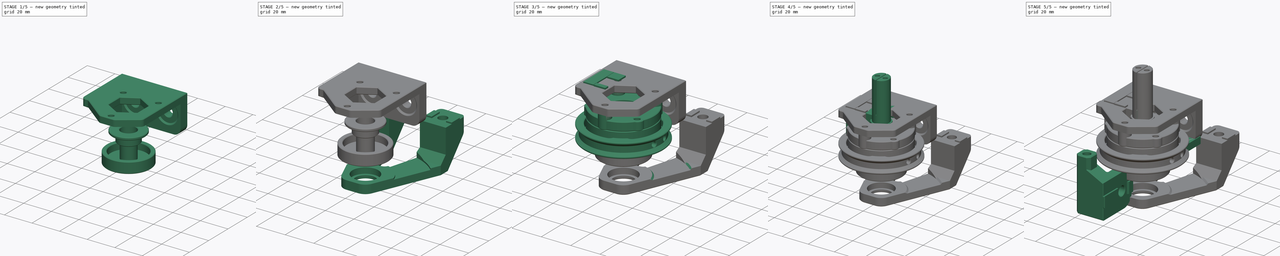
[diagram: build sequence overview — one tinted view per stage of 5, left to right]
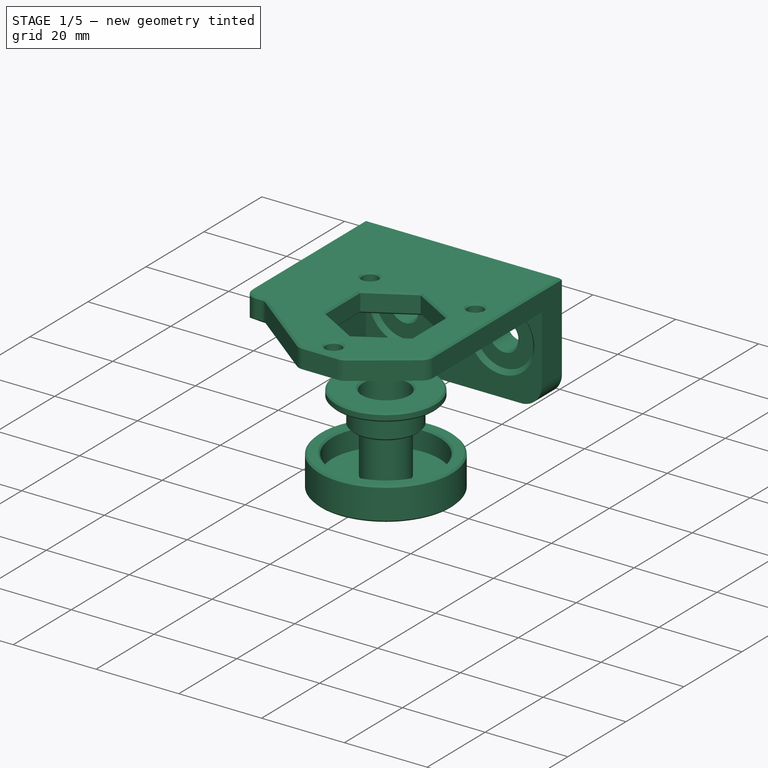
[diagram: stage 1 of 5 — iso view after this stage's code; geometry added in this stage tinted green]
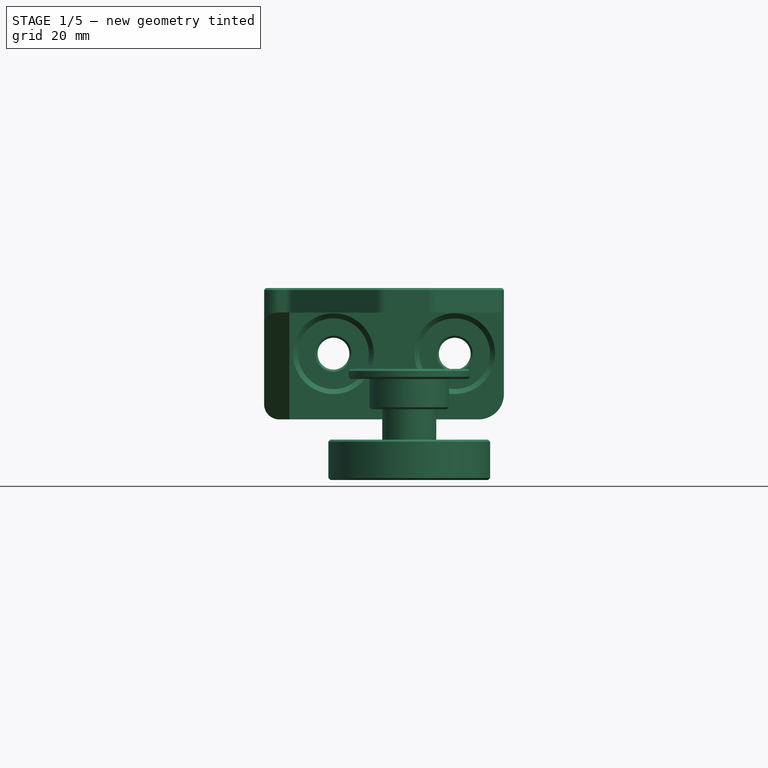
[diagram: stage 1 of 5 — front view after this stage's code; geometry added in this stage tinted green]
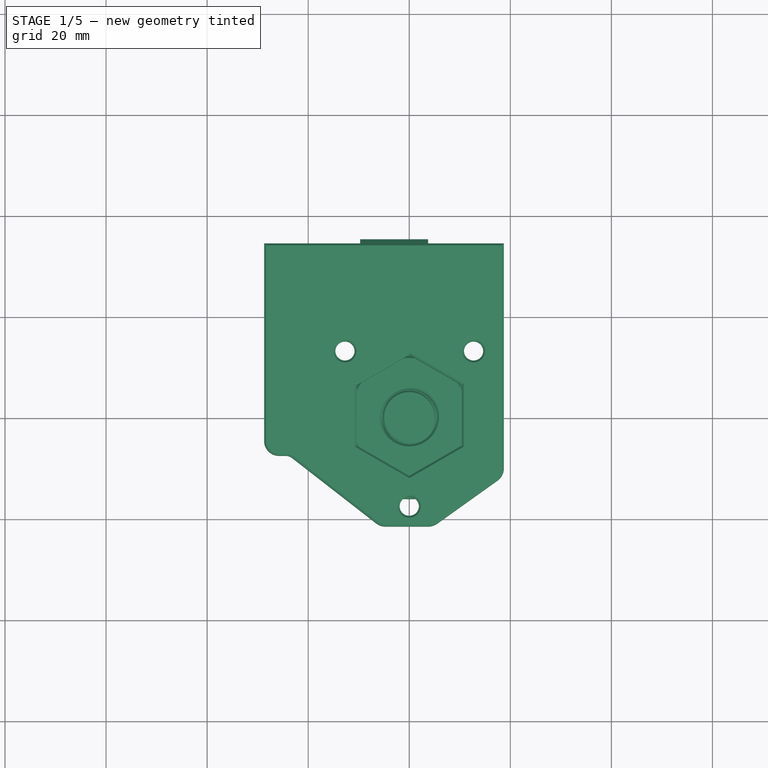
[diagram: stage 1 of 5 — top view after this stage's code; geometry added in this stage tinted green]
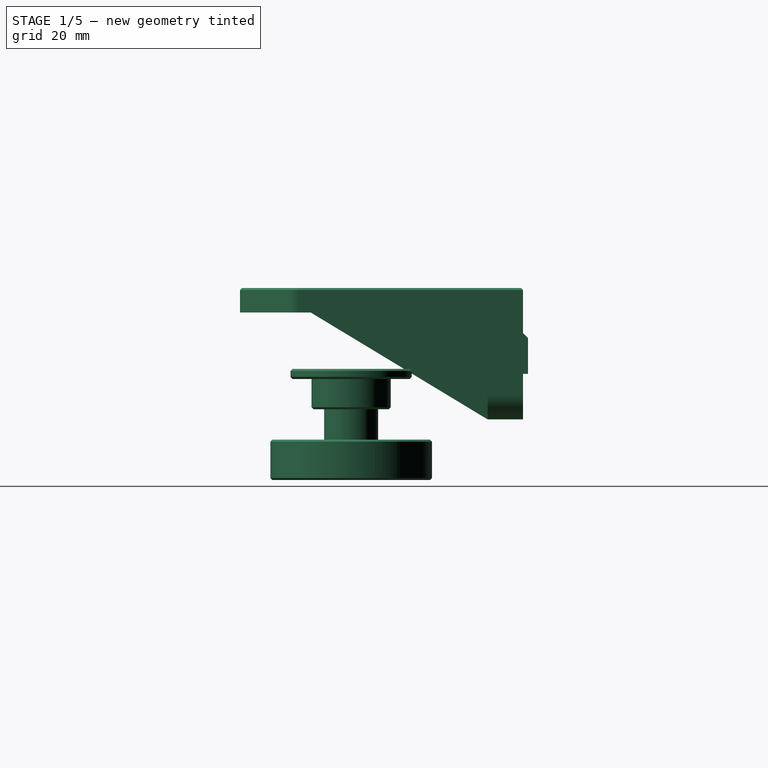
[diagram: stage 1 of 5 — right view after this stage's code; geometry added in this stage tinted green]
FCSTD DOCUMENT  (FreeCAD 0.19R24291 (Git))
Label: counter-weight-spring-short
License: Other
LicenseURL: GPL3
objects: Sketcher::SketchObject×40, Part::Cylinder×34, Part::Chamfer×29, PartDesign::Pocket×26, Part::Cut×22, Part::MultiFuse×21, Part::Box×20, PartDesign::Plane×19, PartDesign::Chamfer×15, Part::Feature×12, PartDesign::Pad×12, PartDesign::Body×10, Part::Fillet×10, PartDesign::Fillet×3, PartDesign::FeatureBase×2, Spreadsheet::Sheet×1, PartDesign::Revolution×1, Part::Extrusion×1
note: 334 computed .brp shape members not serialized (recipe doc carries the construction recipe); baked Part::Feature solids carry a one-line shape summary decoded from their .brp

FEATURE [Part::Box] Box012  label="Cube012"
  AttacherType = Attacher::AttachEngine3D
  Height = 26
  Length = 47.46
  Placement = pos=(-28.73,27,22) rot=(0,0,1;0rad)
  Width = 7
FEATURE [Part::Cylinder] Cylinder008
  Angle = 360
  AttacherType = Attacher::AttachEngine3D
  Height = 10
  Placement = pos=(0,26,35) rot=(-1,0,0;1.5708rad)
  Radius = 3.15
FEATURE [Part::Box] Box014  label="Cube014"
  AttacherType = Attacher::AttachEngine3D
  Height = 8
  Length = 13.46
  Placement = pos=(-9.73,34,31) rot=(0,0,1;0rad)
  Width = 1
FEATURE [Part::Cylinder] Cylinder009
  Angle = 360
  AttacherType = Attacher::AttachEngine3D
  Height = 2
  Placement = pos=(0,27,35) rot=(-1,0,0;1.5708rad)
  Radius = 7
FEATURE [Part::MultiFuse] Fusion001002012
  Placement = pos=(9,0,0) rot=(0,0,1;0rad)
  Shapes = -> [Cylinder009,Cylinder008]
FEATURE [PartDesign::Plane] DatumPlane019
  AttachmentOffset = pos=(0,0,19) rot=(0,0,1;0rad)
  Length = 60
  MapMode = 5
  Placement = pos=(0,0,19) rot=(0,0,1;0rad)
  ResizeMode = 0
  Support = -> [XY_Plane009]
  Width = 60
FEATURE [Part::Box] Box  label="Cube"
  AttacherType = Attacher::AttachEngine3D
  Height = 4.85
  Length = 42.46
  Placement = pos=(-23.73,-22,43.15) rot=(0,0,1;0rad)
  Width = 54
FEATURE [Part::Cylinder] Cylinder027
  Angle = 360
  AttacherType = Attacher::AttachEngine3D
  Height = 8.85
  Placement = pos=(12.7279,12.7279,45.15) rot=(0,0,-1;0.785398rad)
  Radius = 1.9
FEATURE [Part::Cylinder] Cylinder028
  Angle = 360
  AttacherType = Attacher::AttachEngine3D
  Height = 8.85
  Placement = pos=(-12.7279,12.7279,45.15) rot=(0,0,1;0.785398rad)
  Radius = 1.9
FEATURE [Part::Cylinder] Cylinder029
  Angle = 360
  AttacherType = Attacher::AttachEngine3D
  Height = 8.85
  Placement = pos=(0,-18,45.15) rot=(0,0,1;0rad)
  Radius = 1.9
FEATURE [Part::MultiFuse] Fusion001002012026
  Placement = pos=(0,0,-3) rot=(0,0,1;0rad)
  Shapes = -> [Cylinder029,Cylinder028,Cylinder027]
FEATURE [Part::Cylinder] Cylinder038
  Angle = 360
  AttacherType = Attacher::AttachEngine3D
  Height = 8
  Placement = pos=(0,0,-2) rot=(0,0,1;0rad)
  Radius = 7.85
FEATURE [Part::Cylinder] Cylinder039
  Angle = 360
  AttacherType = Attacher::AttachEngine3D
  Height = 2
  Placement = pos=(0,0,4) rot=(0,0,1;0rad)
  Radius = 12
FEATURE [Part::Cylinder] Cylinder040
  Angle = 360
  AttacherType = Attacher::AttachEngine3D
  Height = 8
  Placement = pos=(0,0,-2) rot=(0,0,1;0rad)
  Radius = 5.5
FEATURE [Part::MultiFuse] Fusion001002012036
  Shapes = -> [Cylinder038,Cylinder039]
FEATURE [Part::Cut] Cut001042
  Base = -> Fusion001002012036
  Refine = true
  Tool = -> Cylinder040
FEATURE [Part::Chamfer] Chamfer003068012002091  label="bearing-remover-bottom"
  Base = -> Cut001042
  Edges = 5 edges r=0.4: [Edge1,Edge3,Edge6,Edge7,Edge9]
  Placement = pos=(0,0,6) rot=(0,0,1;0rad)
FEATURE [Part::Cylinder] Cylinder041
  Angle = 360
  AttacherType = Attacher::AttachEngine3D
  Height = 12
  Placement = pos=(0,0,-7) rot=(0,0,1;0rad)
  Radius = 5.35
FEATURE [Part::Cylinder] Cylinder042
  Angle = 360
  AttacherType = Attacher::AttachEngine3D
  Height = 8
  Placement = pos=(0,0,-10) rot=(0,0,1;0rad)
  Radius = 16
FEATURE [Part::Cylinder] Cylinder043
  Angle = 360
  AttacherType = Attacher::AttachEngine3D
  Height = 5
  Placement = pos=(0,0,-7) rot=(0,0,1;0rad)
  Radius = 13
FEATURE [Part::Cut] Cut001043
  Base = -> Cylinder042
  Tool = -> Cylinder043
FEATURE [Part::MultiFuse] Fusion001002012037
  Shapes = -> [Cut001043,Cylinder041]
FEATURE [Part::Chamfer] Chamfer003068012002092  label="bearing-remover-top"
  Base = -> Fusion001002012037
  Edges = 4 edges r=0.4: [Edge1,Edge3,Edge4,Edge8]
FEATURE [Part::Box] Box048  label="Cube048"
  AttacherType = Attacher::AttachEngine3D
  Height = 26
  Length = 5
  Placement = pos=(-28.73,-8,22) rot=(0,0,1;0rad)
  Width = 36
FEATURE [Part::Fillet] Fillet003002014
  Base = -> Box012
  Edges = 1 edges r=5: [Edge8]
FEATURE [Part::Chamfer] Chamfer003068012002096
  Base = -> Box
  Edges = 1 edges: [Edge5 r1=10 r2=14]
FEATURE [Part::MultiFuse] Fusion
  Placement = pos=(0,-1,0) rot=(0,0,1;0rad)
  Shapes = -> [Fusion001002012,Fusion001002012001]
FEATURE [Part::Chamfer] Chamfer003068012002098
  Base = -> Box014
  Edges = 1 edges r=0.9: [Edge12]
FEATURE [Part::Cut] Cut
  Base = -> Fillet003002014
  Tool = -> Fusion
FEATURE [Part::Chamfer] Chamfer003068012002099
  Base = -> Chamfer003068012002096
  Edges = 1 edges: [Edge15 r1=18 r2=14]
FEATURE [Part::Chamfer] Chamfer003068012002100
  Base = -> Box048
  Edges = 1 edges: [Edge9 r1=21.15 r2=35]
FEATURE [Part::Cut] Cut001044
  Base = -> Chamfer003068012002099
  Tool = -> Pad011
FEATURE [Part::Cut] Cut001045
  Base = -> Cut001044
  Tool = -> Fusion001002012026
FEATURE [Part::MultiFuse] Fusion001002012038
  Refine = true
  Shapes = -> [Cut001045,Chamfer003068012002100,Cut,Chamfer003068012002098]
FEATURE [Part::Fillet] Fillet003002015
  Base = -> Fusion001002012038
  Edges = 3 edges r=3: [Edge49,Edge51,Edge52]
FEATURE [Part::Fillet] Fillet003002016
  Base = -> Fillet003002015
  Edges = 1 edges r=3: [Edge81]
FEATURE [Part::Fillet] Fillet003002017
  Base = -> Fillet003002016
  Edges = 1 edges r=2: [Edge37]
FEATURE [Part::Fillet] Fillet003002018
  Base = -> Fillet003002017
  Edges = 1 edges r=3: [Edge34]
FEATURE [Part::Chamfer] Chamfer003068012002101
  Base = -> Fillet003002018
  Edges = 34 edges r=0.4: [Edge5,Edge8,Edge11,Edge16,Edge19,Edge20,Edge21,Edge22,Edge23,Edge24,Edge25,Edge26,Edge27,Edge28,Edge29,Edge30,Edge31,Edge32,Edge33,Edge34,Edge35,Edge36,Edge37,Edge52,Edge64,Edge81,Edge84,Edge86,Edge88,Edge90,Edge92,Edge94,Edge96,Edge98]
FEATURE [Part::Chamfer] Chamfer003068012002102  label="mounter-back"
  Base = -> Chamfer003068012002101
  Edges = 2 edges r=0.99: [Edge102,Edge103]
  Placement = pos=(0,0,-20) rot=(0,0,1;0rad)
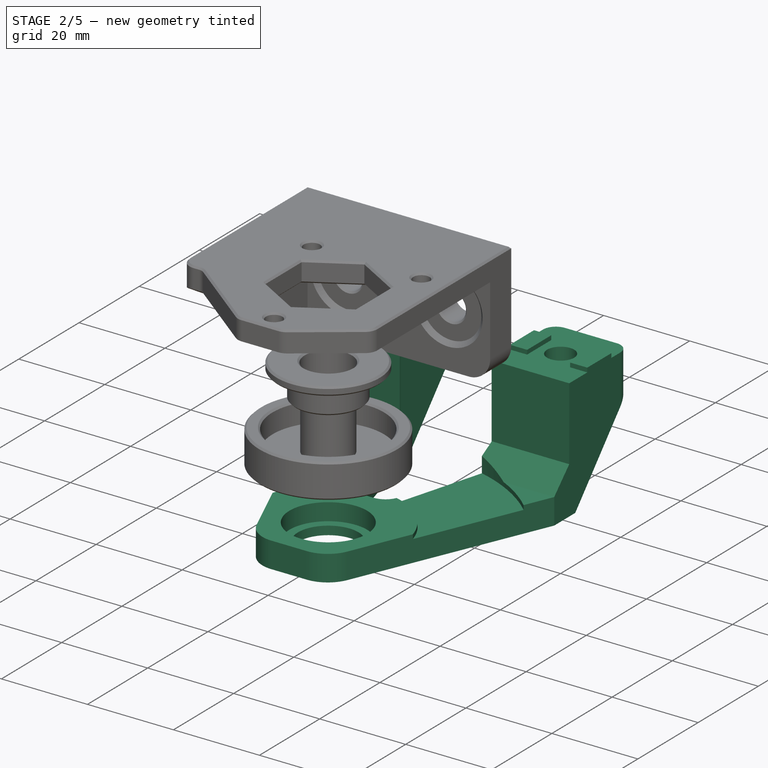
[diagram: stage 2 of 5 — iso view after this stage's code; geometry added in this stage tinted green]
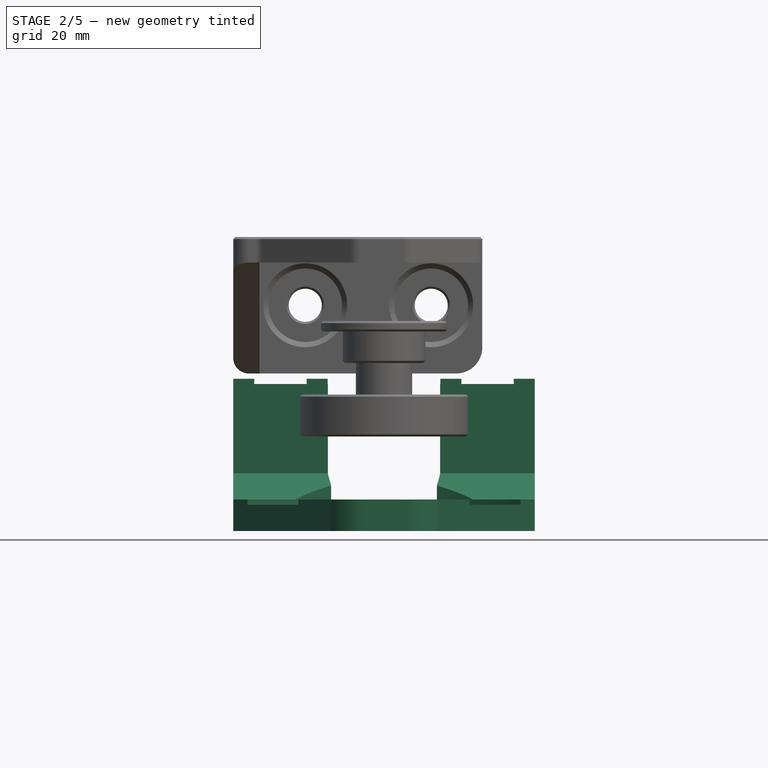
[diagram: stage 2 of 5 — front view after this stage's code; geometry added in this stage tinted green]
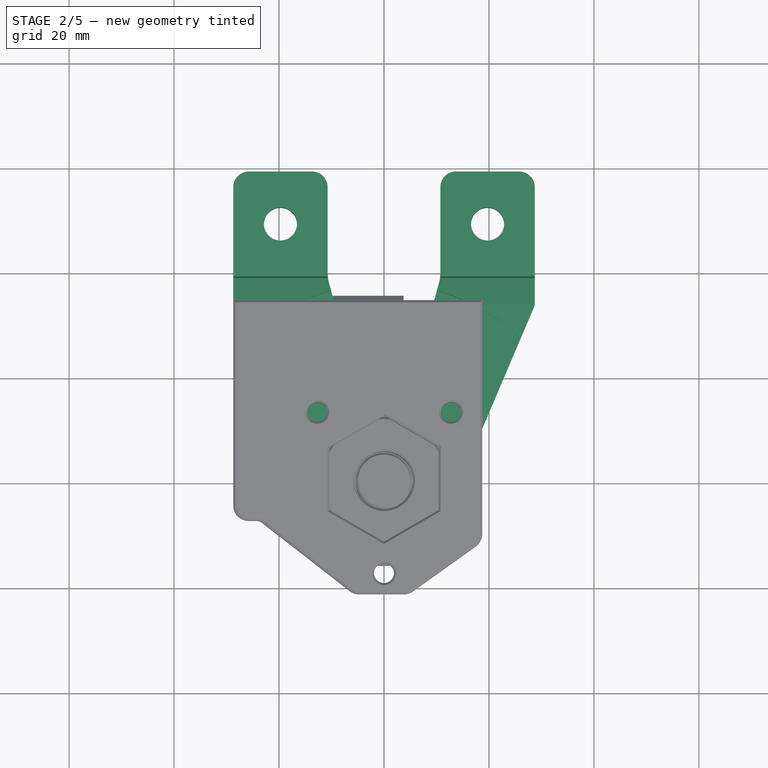
[diagram: stage 2 of 5 — top view after this stage's code; geometry added in this stage tinted green]
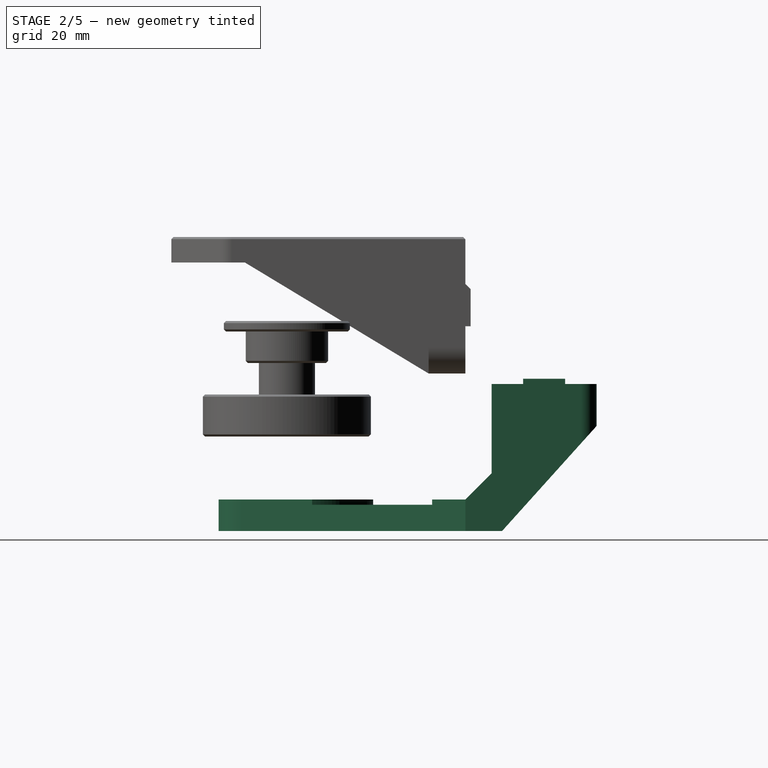
[diagram: stage 2 of 5 — right view after this stage's code; geometry added in this stage tinted green]
FEATURE [PartDesign::Body] Body001001001002003011001004  label="pulley-spacer"
  Group = -> [Sketch053,Pad013,Chamfer003068012002072]
  Origin = -> Origin010
  Placement = pos=(0,0,-2) rot=(0,0,1;0rad)
  Tip = -> Chamfer003068012002072
FEATURE [Part::Feature] Chamfer003068012002073  label="bearing-6701ZZ003"
  Placement = pos=(0,0,-26) rot=(0,0,1;0rad)
  shape: bbox 18 x 18 x 4 mm, 20 faces (baked)
FEATURE [Part::Feature] Common001  label="3030-pref"
  Placement = pos=(-52,49,15) rot=(0,1,0;1.5708rad)
  shape: bbox 100 x 30 x 30 mm, 109 faces (baked)
FEATURE [Part::Box] Box041  label="Cube041"
  AttacherType = Attacher::AttachEngine3D
  Height = 6
  Length = 57.46
  Placement = pos=(-28.73,-13,-28) rot=(0,0,1;0rad)
  Width = 72
FEATURE [Part::Cylinder] Cylinder
  Angle = 360
  AttacherType = Attacher::AttachEngine3D
  Height = 10
  Placement = pos=(0,0,-27) rot=(0,0,1;0rad)
  Radius = 9.05
FEATURE [Part::Cylinder] Cylinder030
  Angle = 360
  AttacherType = Attacher::AttachEngine3D
  Height = 10
  Placement = pos=(0,0,-29) rot=(0,0,1;0rad)
  Radius = 7.05
FEATURE [Part::MultiFuse] Fusion001002012028
  Placement = pos=(0,0,1) rot=(0,0,1;0rad)
  Shapes = -> [Cylinder030,Cylinder]
FEATURE [Part::Box] Box042  label="Cube042"
  AttacherType = Attacher::AttachEngine3D
  Height = 22
  Length = 57.46
  Placement = pos=(-28.73,39,-22) rot=(0,0,1;0rad)
  Width = 20
FEATURE [Part::Box] Box043  label="Cube043"
  AttacherType = Attacher::AttachEngine3D
  Height = 1
  Length = 4
  Placement = pos=(-28.73,45,0) rot=(0,0,1;0rad)
  Width = 8
FEATURE [Part::Box] Box044  label="Cube044"
  AttacherType = Attacher::AttachEngine3D
  Height = 45
  Length = 21.46
  Placement = pos=(-10.73,14,-35) rot=(0,0,1;0rad)
  Width = 55
FEATURE [Part::Chamfer] Chamfer003068012002082
  Base = -> Box044
  Edges = 1 edges: [Edge5 r1=25 r2=7]
FEATURE [Part::Chamfer] Chamfer003068012002083
  Base = -> Chamfer003068012002082
  Edges = 1 edges: [Edge15 r1=7 r2=25]
FEATURE [Part::Fillet] Fillet003002010
  Base = -> Chamfer003068012002083
  Edges = 2 edges r=4: [Edge11,Edge15]
FEATURE [Part::Fillet] Fillet003002011
  Base = -> Fillet003002010
  Edges = 2 edges r=5: [Edge11,Edge22]
FEATURE [Part::Cylinder] Cylinder031
  Angle = 360
  AttacherType = Attacher::AttachEngine3D
  Height = 28
  Placement = pos=(19.73,49,-41) rot=(0,0,1;1.5708rad)
  Radius = 6.15
FEATURE [Part::Cylinder] Cylinder032
  Angle = 360
  AttacherType = Attacher::AttachEngine3D
  Height = 28
  Placement = pos=(-19.73,49,-41) rot=(0,0,1;1.5708rad)
  Radius = 6.15
FEATURE [Part::Cylinder] Cylinder033
  Angle = 360
  AttacherType = Attacher::AttachEngine3D
  Height = 65
  Placement = pos=(-19.73,49,-41) rot=(0,0,1;1.5708rad)
  Radius = 3.15
FEATURE [Part::Cylinder] Cylinder034
  Angle = 360
  AttacherType = Attacher::AttachEngine3D
  Height = 65
  Placement = pos=(19.73,49,-41) rot=(0,0,1;1.5708rad)
  Radius = 3.15
FEATURE [Part::MultiFuse] Fusion001002012030
  Shapes = -> [Cylinder034,Cylinder033]
FEATURE [Part::MultiFuse] Fusion001002012031
  Placement = pos=(0,0,6) rot=(0,0,1;0rad)
  Shapes = -> [Cylinder031,Cylinder032]
FEATURE [Part::Cylinder] Cylinder036
  Angle = 360
  AttacherType = Attacher::AttachEngine3D
  Height = 10
  Placement = pos=(0,0,-23) rot=(0,0,1;0rad)
  Radius = 38
FEATURE [Part::Box] Box045  label="Cube045"
  AttacherType = Attacher::AttachEngine3D
  Height = 1
  Length = 4
  Placement = pos=(-14.73,45,0) rot=(0,0,1;0rad)
  Width = 8
FEATURE [Part::Box] Box046  label="Cube046"
  AttacherType = Attacher::AttachEngine3D
  Height = 1
  Length = 4
  Placement = pos=(10.73,45,0) rot=(0,0,1;0rad)
  Width = 8
FEATURE [Part::Box] Box047  label="Cube047"
  AttacherType = Attacher::AttachEngine3D
  Height = 1
  Length = 4
  Placement = pos=(24.73,45,0) rot=(0,0,1;0rad)
  Width = 8
FEATURE [Part::MultiFuse] Fusion001002012032
  Shapes = -> [Box047,Box046,Box045,Box043]
FEATURE [Part::Chamfer] Chamfer003068012002084
  Base = -> Box041
  Edges = 1 edges: [Edge1 r1=47 r2=20]
FEATURE [Part::Chamfer] Chamfer003068012002085
  Base = -> Chamfer003068012002084
  Edges = 1 edges: [Edge15 r1=20 r2=47]
FEATURE [Part::Fillet] Fillet003002012
  Base = -> Chamfer003068012002085
  Edges = 2 edges r=7: [Edge8,Edge9]
FEATURE [Part::Cut] Cut001035
  Base = -> Fillet003002012
  Tool = -> Fusion001002012028
FEATURE [Part::Cut] Cut001036
  Base = -> Fillet003002012
  Tool = -> Fusion001002012028
FEATURE [Part::MultiFuse] Fusion001002012033
  Shapes = -> [Box042,Cut001035]
FEATURE [Part::MultiFuse] Fusion001002012034
  Refine = true
  Shapes = -> [Fusion001002012033,Cut001036]
FEATURE [Part::Chamfer] Chamfer003068012002086
  Base = -> Fusion001002012034
  Edges = 1 edges: [Edge25 r1=18 r2=20]
FEATURE [Part::Cut] Cut001037
  Base = -> Chamfer003068012002086
  Tool = -> Fillet003002011
FEATURE [Part::Chamfer] Chamfer003068012002087
  Base = -> Cut001037
  Edges = 2 edges r=5: [Edge72,Edge73]
FEATURE [Part::Cut] Cut001038
  Base = -> Chamfer003068012002087
  Tool = -> Fusion001002012031
FEATURE [Part::Cut] Cut001039
  Base = -> Cut001038
  Tool = -> Fusion001002012030
FEATURE [Part::MultiFuse] Fusion001002012035
  Shapes = -> [Cut001039,Fusion001002012032]
FEATURE [Part::Fillet] Fillet003002013
  Base = -> Fusion001002012035
  Edges = 4 edges r=3: [Edge31,Edge64,Edge74,Edge84]
FEATURE [Part::Cylinder] Cylinder037
  Angle = 360
  AttacherType = Attacher::AttachEngine3D
  Height = 10
  Placement = pos=(0,0,-23) rot=(0,0,1;0rad)
  Radius = 17
FEATURE [Part::Cut] Cut001040
  Base = -> Cylinder036
  Tool = -> Cylinder037
FEATURE [Part::Cut] Cut001041
  Base = -> Fillet003002013
  Tool = -> Cut001040
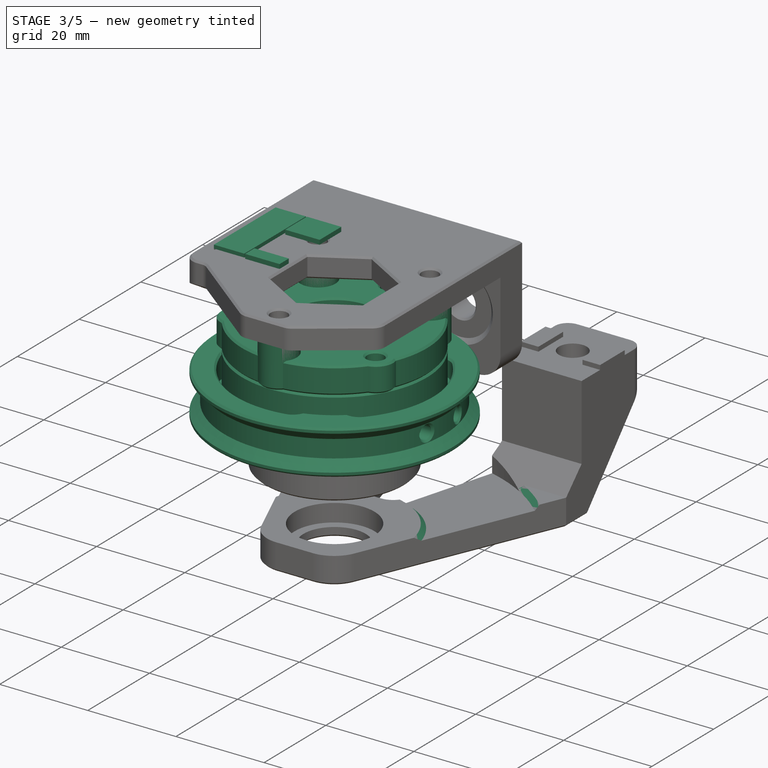
[diagram: stage 3 of 5 — iso view after this stage's code; geometry added in this stage tinted green]
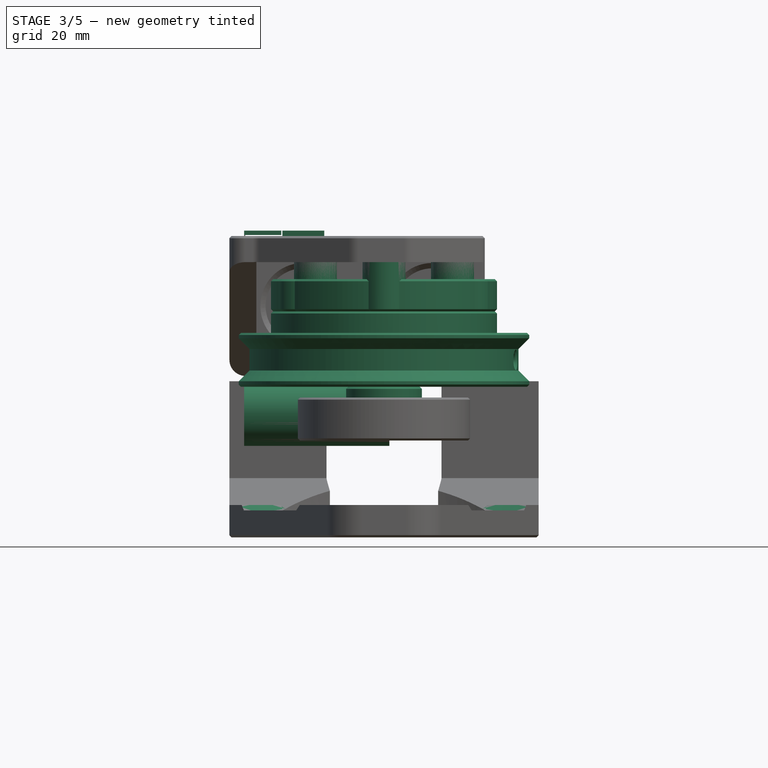
[diagram: stage 3 of 5 — front view after this stage's code; geometry added in this stage tinted green]
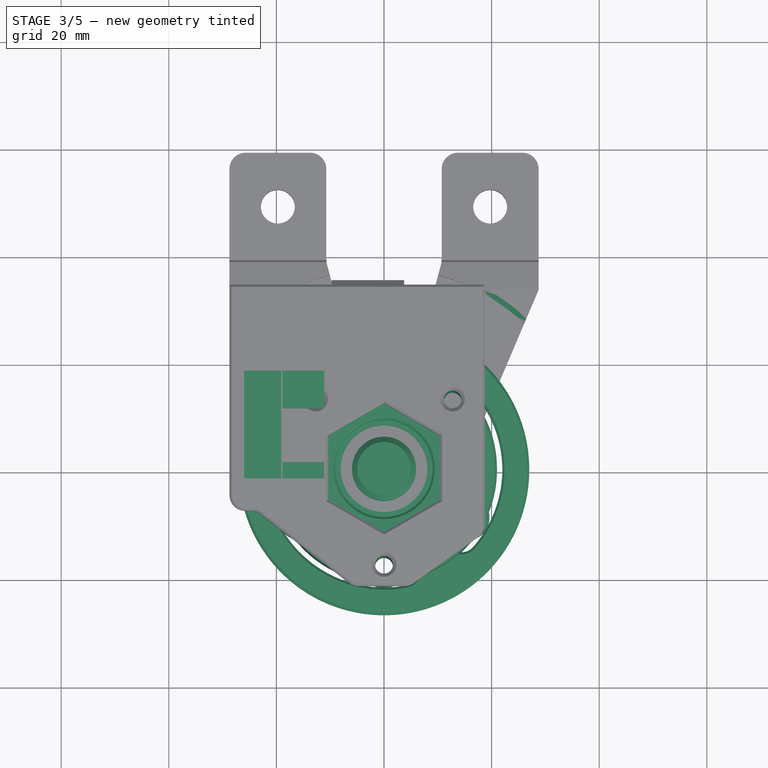
[diagram: stage 3 of 5 — top view after this stage's code; geometry added in this stage tinted green]
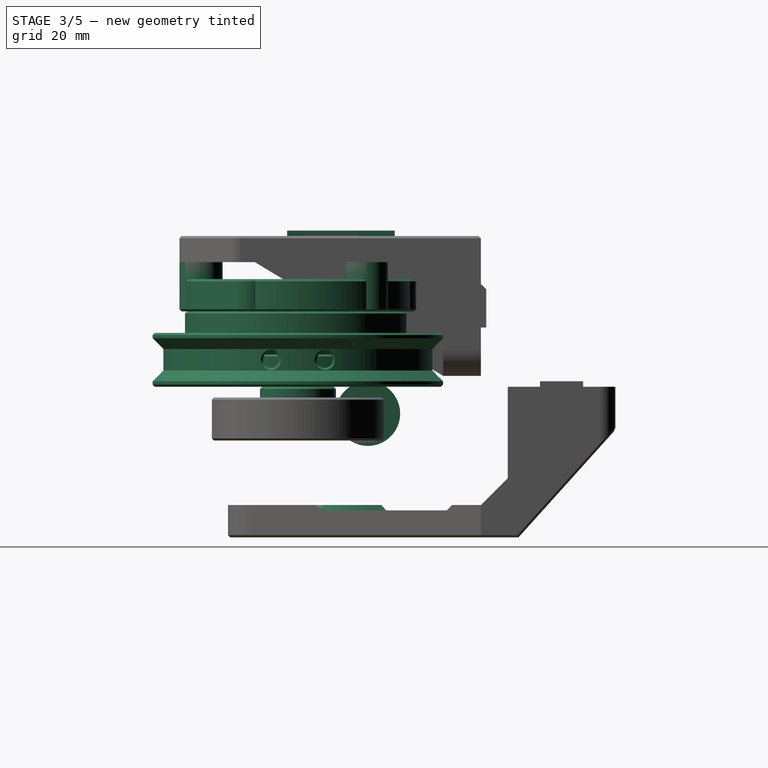
[diagram: stage 3 of 5 — right view after this stage's code; geometry added in this stage tinted green]
FEATURE [Part::Feature] Chamfer001  label="bearing-6701ZZ"
  Placement = pos=(0,0,-2) rot=(0,0,1;0rad)
  shape: bbox 18 x 18 x 4 mm, 20 faces (baked)
FEATURE [Spreadsheet::Sheet] Spreadsheet  label="params"
  cells = A1=Bearing outer slot; B1(bearing_outer_r)=9.050000000000001; A2=Bearing inner slot; B2(bearing_inner_r)=5.95; A3=Housing inner; B3(housing_inner_r)=15; A4=Housing outer; B4(housing_outer_r)=21; A5=Housing height; B5(housing_h)=14; A6=Housing axis slot; B6(housing_axis_r)=8.050000000000001; A7=Prulley radius; B7(pulley_radius)=25; A8=Pulley axis deep; B8(pulley_axis_deep)=15
FEATURE [Sketcher::SketchObject] Sketch
  FullyConstrained = false
  MapMode = 5
  Support = -> [XY_Plane]
  expr: Constraints[0] = <<params>>.housing_outer_r
  sketch-geometry (1):
    g0: Circle CenterX=0 CenterY=0 CenterZ=0 NormalX=0 NormalY=0 NormalZ=1 AngleXU=0 Radius=21
  constraints (1):
    c: Radius(g0) = 21
FEATURE [PartDesign::Pad] Pad
  Direction = (1,1,1)
  Length = 14
  Length2 = 100
  Profile = -> Sketch
  Type = 0
  expr: Length = <<params>>.housing_h
FEATURE [PartDesign::Plane] DatumPlane
  Length = 60
  MapMode = 5
  ResizeMode = 0
  Support = -> [XY_Plane]
  Width = 60
FEATURE [Sketcher::SketchObject] Sketch001
  FullyConstrained = true
  MapMode = 5
  Support = -> [DatumPlane]
  expr: Constraints[1] = <<params>>.bearing_outer_r
  sketch-geometry (1):
    g0: Circle CenterX=0 CenterY=0 CenterZ=0 NormalX=0 NormalY=0 NormalZ=1 AngleXU=0 Radius=9.05
  constraints (2):
    c: Coincident(g0,g-1)
    c: Radius(g0) = 9.05
FEATURE [PartDesign::Pocket] Pocket
  BaseFeature = -> Pad
  Length = 4
  Length2 = 100
  Profile = -> Sketch001
  Reversed = true
  Type = 0
FEATURE [PartDesign::Plane] DatumPlane001
  Length = 60
  MapMode = 5
  ResizeMode = 0
  Support = -> [XY_Plane]
  Width = 60
FEATURE [Sketcher::SketchObject] Sketch002
  FullyConstrained = true
  MapMode = 5
  Support = -> [DatumPlane001]
  expr: Constraints[1] = <<params>>.housing_axis_r
  sketch-geometry (1):
    g0: Circle CenterX=0 CenterY=0 CenterZ=0 NormalX=0 NormalY=0 NormalZ=1 AngleXU=0 Radius=8.05
  constraints (2):
    c: Coincident(g0,g-1)
    c: Radius(g0) = 8.05
FEATURE [PartDesign::Pocket] Pocket001
  BaseFeature = -> Pocket
  Length = 5
  Length2 = 100
  Profile = -> Sketch002
  Reversed = true
  Type = 1
FEATURE [PartDesign::Plane] DatumPlane002
  AttachmentOffset = pos=(0,0,6) rot=(0,0,1;0rad)
  Length = 60
  MapMode = 5
  Placement = pos=(0,0,6) rot=(0,0,1;0rad)
  ResizeMode = 0
  Support = -> [XY_Plane]
  Width = 60
FEATURE [Sketcher::SketchObject] Sketch003
  FullyConstrained = true
  MapMode = 5
  Placement = pos=(0,0,6) rot=(0,0,1;0rad)
  Support = -> [DatumPlane002]
  expr: Constraints[1] = <<params>>.housing_inner_r
  sketch-geometry (1):
    g0: Circle CenterX=0 CenterY=0 CenterZ=0 NormalX=0 NormalY=0 NormalZ=1 AngleXU=0 Radius=15
  constraints (2):
    c: Coincident(g0,g-1)
    c: Radius(g0) = 15
FEATURE [PartDesign::Pocket] Pocket002
  BaseFeature = -> Pocket001
  Length = 5
  Length2 = 100
  Profile = -> Sketch003
  Reversed = true
  Type = 1
FEATURE [PartDesign::Plane] DatumPlane003
  AttachmentOffset = pos=(0,0,14) rot=(0,0,1;0rad)
  Length = 60
  MapMode = 5
  Placement = pos=(0,0,14) rot=(0,0,1;0rad)
  ResizeMode = 0
  Support = -> [XY_Plane]
  Width = 60
FEATURE [Sketcher::SketchObject] Sketch004
  FullyConstrained = true
  MapMode = 5
  Placement = pos=(0,0,14) rot=(0,0,1;0rad)
  Support = -> [DatumPlane003]
  expr: Constraints[2] = <<params>>.housing_inner_r
  sketch-geometry (4):
    g0: LineSegment StartX=0 StartY=0 StartZ=0 EndX=-10.6066 EndY=10.6066 EndZ=0
    g1: LineSegment StartX=-10.6066 StartY=10.6066 StartZ=0 EndX=0 EndY=10.6066 EndZ=0
    g2: LineSegment StartX=0 StartY=10.6066 StartZ=0 EndX=0 EndY=21.2132 EndZ=0
    g3: LineSegment StartX=0 StartY=21.2132 StartZ=0 EndX=-10.6066 EndY=10.6066 EndZ=0
  constraints (11):
    c: Coincident(g0,g-1)
    c: Angle(g-2,g0) = 0.785398
    c: Distance(g0) = 15
    c: PointOnObject(g1,g-2)
    c: Horizontal(g1)
    c: Coincident(g2,g1)
    c: PointOnObject(g2,g-2)
    c: Coincident(g3,g1)
    c: Angle(g1,g3) = 0.785398
    c: Coincident(g1,g0)
    c: Coincident(g2,g3)
FEATURE [PartDesign::Pocket] Pocket003
  BaseFeature = -> Pocket002
  Length = 8
  Length2 = 100
  Profile = -> Sketch004
  Type = 0
FEATURE [Sketcher::SketchObject] Sketch005
  FullyConstrained = true
  MapMode = 5
  Placement = pos=(0,0,14) rot=(0,0,1;0rad)
  Support = -> [DatumPlane003]
  expr: Constraints[2] = <<params>>.housing_outer_r - 3
  sketch-geometry (1):
    g0: Circle CenterX=0 CenterY=18 CenterZ=0 NormalX=0 NormalY=0 NormalZ=1 AngleXU=0 Radius=3.5
  constraints (3):
    c: PointOnObject(g0,g-2)
    c: Radius(g0) = 3.5
    c: DistanceY(g-1,g0) = 18
FEATURE [PartDesign::Pocket] Pocket004
  BaseFeature = -> Pocket003
  Length = 8
  Length2 = 100
  Profile = -> Sketch005
  Type = 0
FEATURE [PartDesign::Fillet] Fillet
  Base = -> Pocket004 [Edge3,Edge7,Edge32]
  BaseFeature = -> Pocket004
  Radius = 2
  SupportTransform = false
FEATURE [Sketcher::SketchObject] Sketch006
  FullyConstrained = true
  MapMode = 5
  Support = -> [DatumPlane]
  expr: Constraints[2] = <<params>>.housing_outer_r - 3
  sketch-geometry (10):
    g0: Circle CenterX=0 CenterY=18 CenterZ=0 NormalX=0 NormalY=0 NormalZ=1 AngleXU=0 Radius=4
    g1: Circle CenterX=0 CenterY=0 CenterZ=0 NormalX=0 NormalY=0 NormalZ=1 AngleXU=0 Radius=18
    g2: LineSegment StartX=0 StartY=0 StartZ=0 EndX=-12.7279 EndY=12.7279 EndZ=0
    g3: LineSegment StartX=0 StartY=0 StartZ=0 EndX=12.7279 EndY=12.7279 EndZ=0
    g4: Circle CenterX=-12.7279 CenterY=12.7279 CenterZ=0 NormalX=0 NormalY=0 NormalZ=1 AngleXU=0 Radius=4
    g5: Circle CenterX=12.7279 CenterY=12.7279 CenterZ=0 NormalX=0 NormalY=0 NormalZ=1 AngleXU=0 Radius=4
    g6: LineSegment StartX=0 StartY=0 StartZ=0 EndX=-15.5885 EndY=-9 EndZ=0
    g7: LineSegment StartX=0 StartY=0 StartZ=0 EndX=15.5885 EndY=-9 EndZ=0
    g8: Circle CenterX=-15.5885 CenterY=-9 CenterZ=0 NormalX=0 NormalY=0 NormalZ=1 AngleXU=0 Radius=4
    g9: Circle CenterX=15.5885 CenterY=-9 CenterZ=0 NormalX=0 NormalY=0 NormalZ=1 AngleXU=0 Radius=4
  constraints (25):
    c: PointOnObject(g0,g-2)
    c: Radius(g0) = 4
    c: DistanceY(g-1,g0) = 18
    c: Coincident(g1,g-1)
    c: Radius(g1) = 18
    c: Coincident(g2,g-1)
    c: PointOnObject(g2,g1)
    c: Coincident(g3,g-1)
    c: PointOnObject(g3,g1)
    c: Angle(g-2,g2) = 0.785398
    c: Angle(g3,g-2) = 0.785398
    c: Coincident(g4,g2)
    c: Coincident(g5,g3)
    c: Radius(g5) = 4
    c: Radius(g4) = 4
    c: Coincident(g6,g-1)
    c: PointOnObject(g6,g1)
    c: Coincident(g7,g-1)
    c: PointOnObject(g7,g1)
    c: Angle(g-2,g6) = 2.0944
    c: Angle(g7,g-2) = 2.0944
    c: Coincident(g8,g6)
    c: Coincident(g9,g7)
    c: Radius(g8) = 4
    c: Radius(g9) = 4
FEATURE [PartDesign::Pad] Pad001
  BaseFeature = -> Fillet
  Direction = (1,1,1)
  Length = 6
  Length2 = 100
  Profile = -> Sketch006
  Type = 0
FEATURE [Sketcher::SketchObject] Sketch007
  FullyConstrained = true
  MapMode = 5
  Support = -> [DatumPlane]
  sketch-geometry (12):
    g0: Circle CenterX=0 CenterY=0 CenterZ=0 NormalX=0 NormalY=0 NormalZ=1 AngleXU=0 Radius=18
    g1: LineSegment StartX=0 StartY=0 StartZ=0 EndX=-12.7279 EndY=12.7279 EndZ=0
    g2: LineSegment StartX=0 StartY=0 StartZ=0 EndX=12.7279 EndY=12.7279 EndZ=0
    g3: Circle CenterX=-12.7279 CenterY=12.7279 CenterZ=0 NormalX=0 NormalY=0 NormalZ=1 AngleXU=0 Radius=1.65
    g4: Circle CenterX=12.7279 CenterY=12.7279 CenterZ=0 NormalX=0 NormalY=0 NormalZ=1 AngleXU=0 Radius=1.65
    g5: Circle CenterX=0 CenterY=18 CenterZ=0 NormalX=0 NormalY=0 NormalZ=1 AngleXU=0 Radius=1.65
    g6: LineSegment StartX=0 StartY=0 StartZ=0 EndX=-15.5885 EndY=-9 EndZ=0
    g7: LineSegment StartX=0 StartY=0 StartZ=0 EndX=15.5885 EndY=-9 EndZ=0
    g8: Circle CenterX=-15.5885 CenterY=-9 CenterZ=0 NormalX=0 NormalY=0 NormalZ=1 AngleXU=0 Radius=1.65
    g9: Circle CenterX=15.5885 CenterY=-9 CenterZ=0 NormalX=0 NormalY=0 NormalZ=1 AngleXU=0 Radius=1.65
    g10: Circle CenterX=-1.60853e-10 CenterY=-18 CenterZ=0 NormalX=0 NormalY=0 NormalZ=1 AngleXU=0 Radius=1.65
    g11: LineSegment StartX=0 StartY=0 StartZ=0 EndX=-1.60853e-10 EndY=-18 EndZ=0
  constraints (30):
    c: Coincident(g0,g-1)
    c: Radius(g0) = 18
    c: Coincident(g1,g-1)
    c: PointOnObject(g1,g0)
    c: Coincident(g2,g-1)
    c: PointOnObject(g2,g0)
    c: Angle(g2,g-2) = 0.785398
    c: Angle(g-2,g1) = 0.785398
    c: Coincident(g3,g1)
    c: Coincident(g4,g2)
    c: PointOnObject(g5,g-2)
    c: Radius(g3) = 1.65
    c: Radius(g4) = 1.65
    c: DistanceY(g-1,g5) = 18
    c: Radius(g5) = 1.65
    c: Coincident(g6,g-1)
    c: PointOnObject(g6,g0)
    c: Coincident(g7,g-1)
    c: PointOnObject(g7,g0)
    c: Angle(g7,g-2) = 2.0944
    c: Angle(g-2,g6) = 2.0944
    c: Coincident(g8,g6)
    c: Coincident(g9,g7)
    c: Radius(g8) = 1.65
    c: Radius(g9) = 1.65
    c: PointOnObject(g10,g0)
    c: Radius(g10) = 1.65
    c: Coincident(g11,g-1)
    c: Coincident(g11,g10)
    c: Angle(g-2,g11) = 3.14159
FEATURE [PartDesign::Pocket] Pocket005
  BaseFeature = -> Pad001
  Length = 5
  Length2 = 100
  Profile = -> Sketch007
  Reversed = true
  Type = 1
FEATURE [PartDesign::Body] Body003  label="axis"
  Group = -> [Sketch014,Pad004,DatumPlane005,Sketch015,Pad005,DatumPlane006,Sketch016,Pad006,DatumPlane007,DatumPlane008,Sketch018,Pocket010,Sketch019,Pocket011,DatumPlane009,Sketch020,Pocket012,Chamfer,Chamfer003]
  Origin = -> Origin003
  Placement = pos=(0,0,21) rot=(0.707107,-0.707107,0;3.14159rad)
  Tip = -> Chamfer003
FEATURE [PartDesign::Plane] DatumPlane010
  Length = 64.3923
  MapMode = 5
  Placement = pos=(0,0,0) rot=(0.57735,0.57735,0.57735;2.0944rad)
  ResizeMode = 0
  Support = -> [YZ_Plane004]
  Width = 60.3923
FEATURE [Sketcher::SketchObject] Sketch022
  FullyConstrained = true
  MapMode = 5
  Placement = pos=(0,0,0) rot=(0.57735,0.57735,0.57735;2.0944rad)
  Support = -> [DatumPlane010]
  expr: Constraints[18] = <<params>>.pulley_radius + 2
  expr: Constraints[17] = <<params>>.pulley_radius + 2 - 7
  sketch-geometry (12):
    g0: LineSegment StartX=-2e-16 StartY=0 StartZ=0 EndX=-27 EndY=0 EndZ=0
    g1: LineSegment StartX=-27 StartY=0 StartZ=0 EndX=-27 EndY=1 EndZ=0
    g2: LineSegment StartX=-27 StartY=1 StartZ=0 EndX=-25 EndY=3 EndZ=0
    g3: LineSegment StartX=-25 StartY=3 StartZ=0 EndX=-25 EndY=7 EndZ=0
    g4: LineSegment StartX=-25 StartY=7 StartZ=0 EndX=-27 EndY=9 EndZ=0
    g5: LineSegment StartX=-27 StartY=9 StartZ=0 EndX=-27 EndY=10 EndZ=0
    g6: LineSegment StartX=-27 StartY=10 StartZ=0 EndX=-7 EndY=10 EndZ=0
    g7: LineSegment StartX=-7 StartY=10 StartZ=0 EndX=-7 EndY=11 EndZ=0
    g8: LineSegment StartX=-7 StartY=11 StartZ=0 EndX=-5.95 EndY=11 EndZ=0
    g9: LineSegment StartX=-5.95 StartY=11 StartZ=0 EndX=-5.95 EndY=16.5 EndZ=0
    g10: LineSegment StartX=-5.95 StartY=16.5 StartZ=0 EndX=0 EndY=16.5 EndZ=0
    g11: LineSegment StartX=-2e-16 StartY=16.5 StartZ=0 EndX=-2e-16 EndY=0 EndZ=0
  constraints (36):
    c: Horizontal(g0)
    c: Coincident(g0,g1)
    c: Vertical(g1)
    c: Coincident(g1,g2)
    c: Coincident(g2,g3)
    c: Vertical(g3)
    c: Coincident(g3,g4)
    c: Coincident(g4,g5)
    c: Vertical(g5)
    c: Coincident(g5,g6)
    c: Horizontal(g6)
    c: DistanceY(g1,g1) = 1
    c: DistanceY(g5,g5) = 1
    c: DistanceY(g3,g3) = 4
    c: DistanceY(g1,g2) = 2
    c: DistanceX(g4,g3) = 2
    c: DistanceX(g5,g0) = 0
    c: DistanceX(g6,g6) = 20
    c: DistanceX(g0,g0) = 27
    c: DistanceY(g-1,g0) = 0
    c: DistanceX(g-1,g0) = 0
    c: DistanceY(g3,g4) = 2
    c: Coincident(g6,g7)
    c: Vertical(g7)
    c: Coincident(g7,g8)
    c: Horizontal(g8)
    c: Coincident(g8,g9)
    c: Vertical(g9)
    c: Coincident(g9,g10)
    c: Horizontal(g10)
    c: Coincident(g10,g11)
    c: Coincident(g11,g0)
    c: Vertical(g11)
    c: DistanceY(g7,g7) = 1
    c: DistanceY(g9,g9) = 5.5
    c: DistanceX(g10,g10) = 5.95
FEATURE [PartDesign::Revolution] Revolution
  Angle = 360
  Axis = (-1e-16,1e-16,1)
  Base = (0,0,0)
  Placement = pos=(0,0,0) rot=(0.57735,0.57735,0.57735;2.0944rad)
  Profile = -> Sketch022
  ReferenceAxis = -> Sketch022 [V_Axis]
FEATURE [Part::Box] Box018  label="Cube018"
  AttacherType = Attacher::AttachEngine3D
  Height = 1
  Length = 7.8
  Placement = pos=(-18.9,11,28) rot=(0,0,1;0rad)
  Width = 7
FEATURE [Part::Box] Box020  label="Cube020"
  AttacherType = Attacher::AttachEngine3D
  Height = 1
  Length = 7.8
  Placement = pos=(-18.9,-2,28) rot=(0,0,1;0rad)
  Width = 3
FEATURE [Part::Cylinder] Cylinder023
  Angle = 360
  AttacherType = Attacher::AttachEngine3D
  Height = 27
  Placement = pos=(1,13,-5) rot=(0,-1,0;1.5708rad)
  Radius = 6
FEATURE [Part::MultiFuse] Fusion001002012023
  Shapes = -> [Box018,Box020]
FEATURE [Part::Box] Box039  label="Cube039"
  AttacherType = Attacher::AttachEngine3D
  Height = 1
  Length = 0.2
  Placement = pos=(-26,-2,28) rot=(0,0,1;0rad)
  Width = 20
FEATURE [Part::Box] Box040  label="Cube040"
  AttacherType = Attacher::AttachEngine3D
  Height = 0.8
  Length = 6.9
  Placement = pos=(-26,-2,28.2) rot=(0,0,1;0rad)
  Width = 20
FEATURE [Part::MultiFuse] Fusion001002012025  label="custom-support"
  Shapes = -> [Box040,Box039]
FEATURE [Sketcher::SketchObject] Sketch046
  FullyConstrained = true
  MapMode = 5
  Placement = pos=(0,0,0) rot=(1,0,0;3.14159rad)
  Support = -> [Pocket005]
  sketch-geometry (1):
    g0: Circle CenterX=0 CenterY=0 CenterZ=0 NormalX=0 NormalY=0 NormalZ=1 AngleXU=0 Radius=25
  constraints (2):
    c: Coincident(g0,g-1)
    c: Radius(g0) = 25
FEATURE [PartDesign::Pocket] Pocket031
  BaseFeature = -> Pocket005
  Length = 6
  Length2 = 100
  Profile = -> Sketch046
  Refine = true
  Type = 0
FEATURE [PartDesign::Chamfer] Chamfer003068012002052
  Angle = 45
  Base = -> Pocket031 [Face3,Face2]
  BaseFeature = -> Pocket031
  ChamferType = 0
  FlipDirection = false
  Size = 0.4
  Size2 = 1
  SupportTransform = false
FEATURE [PartDesign::Body] Body  label="housing"
  Group = -> [Sketch,Pad,DatumPlane,Sketch001,Pocket,DatumPlane001,Sketch002,Pocket001,DatumPlane002,Sketch003,Pocket002,DatumPlane003,Sketch004,Pocket003,Sketch005,Pocket004,Fillet,Sketch006,Pad001,Sketch007,Pocket005,Sketch046,Pocket031,Chamfer003068012002052]
  Origin = -> Origin
  Placement = pos=(0,0,-2) rot=(0,0,1;0rad)
  Tip = -> Chamfer003068012002052
FEATURE [Part::Feature] Body001001001002003011001001  label="cover005"
  shape: bbox 42 x 44 x 6 mm, 23 faces (baked)
FEATURE [Part::Feature] Body001001001002003010001001  label="cover006"
  shape: bbox 42 x 44 x 6 mm, 23 faces (baked)
FEATURE [PartDesign::FeatureBase] BaseFeature
  BaseFeature = -> Body001001001002003011001001
FEATURE [PartDesign::FeatureBase] BaseFeature001
  BaseFeature = -> Body001001001002003010001001
FEATURE [Part::Feature] Pad011
  Placement = pos=(0,0,40) rot=(0,0,1;0rad)
  shape: bbox 20.78 x 24 x 10 mm, 8 faces (baked)
FEATURE [Part::Feature] Chamfer003068012002063  label="bearing-6701ZZ002"
  Placement = pos=(0,0,14) rot=(0,0,1;0rad)
  shape: bbox 18 x 18 x 4 mm, 20 faces (baked)
FEATURE [PartDesign::Chamfer] Chamfer003068012002064
  Angle = 45
  Base = -> BaseFeature [Face20,Face10]
  BaseFeature = -> BaseFeature
  ChamferType = 0
  FlipDirection = false
  Size = 0.4
  Size2 = 1
  SupportTransform = false
FEATURE [PartDesign::Body] Body001001001002003011001002  label="front-plate"
  BaseFeature = -> Body001001001002003011001001
  Group = -> [BaseFeature,Chamfer003068012002064]
  Origin = -> Origin008
  Placement = pos=(0,0,-2) rot=(0,0,1;0rad)
  Tip = -> Chamfer003068012002064
FEATURE [Sketcher::SketchObject] Sketch047
  FullyConstrained = true
  MapMode = 5
  Placement = pos=(0,0,20) rot=(0,0,1;0rad)
  Support = -> [BaseFeature001]
  sketch-geometry (10):
    g0: Circle CenterX=0 CenterY=0 CenterZ=0 NormalX=0 NormalY=0 NormalZ=1 AngleXU=0 Radius=18
    g1: LineSegment StartX=0 StartY=0 StartZ=0 EndX=-12.7279 EndY=12.7279 EndZ=0
    g2: LineSegment StartX=0 StartY=0 StartZ=0 EndX=1.1e-15 EndY=18 EndZ=0
    g3: LineSegment StartX=0 StartY=0 StartZ=0 EndX=12.7279 EndY=12.7279 EndZ=0
    g4: LineSegment StartX=0 StartY=0 StartZ=0 EndX=-15.5885 EndY=-9 EndZ=0
    g5: LineSegment StartX=0 StartY=0 StartZ=0 EndX=-3.3e-15 EndY=-18 EndZ=0
    g6: LineSegment StartX=0 StartY=0 StartZ=0 EndX=15.5885 EndY=-9 EndZ=0
    g7: Circle CenterX=1.1e-15 CenterY=18 CenterZ=0 NormalX=0 NormalY=0 NormalZ=1 AngleXU=0 Radius=1.9
    g8: Circle CenterX=15.5885 CenterY=-9 CenterZ=0 NormalX=0 NormalY=0 NormalZ=1 AngleXU=0 Radius=1.9
    g9: Circle CenterX=-15.5885 CenterY=-9 CenterZ=0 NormalX=0 NormalY=0 NormalZ=1 AngleXU=0 Radius=1.9
  constraints (26):
    c: Coincident(g0,g-1)
    c: Radius(g0) = 18
    c: Coincident(g1,g-1)
    c: PointOnObject(g1,g0)
    c: Coincident(g2,g-1)
    c: PointOnObject(g2,g0)
    c: Coincident(g3,g-1)
    c: PointOnObject(g3,g0)
    c: Coincident(g4,g-1)
    c: PointOnObject(g4,g0)
    c: Coincident(g5,g-1)
    c: PointOnObject(g5,g0)
    c: Coincident(g6,g-1)
    c: PointOnObject(g6,g0)
    c: Angle(g-2,g2) = 0
    c: Angle(g-2,g1) = 0.785398
    c: Angle(g3,g-2) = 0.785398
    c: Angle(g-2,g5) = 3.14159
    c: Angle(g-2,g4) = 2.0944
    c: Angle(g6,g-2) = 2.0944
    c: Coincident(g7,g2)
    c: Coincident(g8,g6)
    c: Radius(g7) = 1.9
    c: Radius(g8) = 1.9
    c: Coincident(g9,g4)
    c: Radius(g9) = 1.9
FEATURE [PartDesign::Pocket] Pocket032
  BaseFeature = -> BaseFeature001
  Length = 5
  Length2 = 100
  Profile = -> Sketch047
  Type = 1
FEATURE [PartDesign::Chamfer] Chamfer003068012002066
  Angle = 45
  Base = -> Revolution [Edge13]
  BaseFeature = -> Revolution
  ChamferType = 0
  FlipDirection = false
  Placement = pos=(0,0,0) rot=(0.57735,0.57735,0.57735;2.0944rad)
  Size = 0.4
  Size2 = 1
  SupportTransform = false
FEATURE [PartDesign::Chamfer] Chamfer003068012002067
  Angle = 45
  Base = -> Chamfer003068012002066 [Edge10]
  BaseFeature = -> Chamfer003068012002066
  ChamferType = 0
  FlipDirection = false
  Placement = pos=(0,0,0) rot=(0.57735,0.57735,0.57735;2.0944rad)
  Size = 1
  Size2 = 1
  SupportTransform = false
FEATURE [Sketcher::SketchObject] Sketch048
  FullyConstrained = true
  MapMode = 5
  Placement = pos=(-1.1e-15,0,10) rot=(0,0,-1;1.5708rad)
  Support = -> [Chamfer003068012002067]
  expr: Constraints[2] = <<params>>.pulley_radius - 3
  sketch-geometry (18):
    g0: ArcOfCircle CenterX=0 CenterY=0 CenterZ=0 NormalX=0 NormalY=0 NormalZ=1 AngleXU=0 Radius=10 StartAngle=2.79253 EndAngle=4.53786
    g1: ArcOfCircle CenterX=0 CenterY=0 CenterZ=0 NormalX=0 NormalY=0 NormalZ=1 AngleXU=0 Radius=22 StartAngle=4.88692 EndAngle=6.63225
    g2: LineSegment StartX=-7.66044 StartY=6.42788 StartZ=0 EndX=-16.853 EndY=14.1413 EndZ=0
    g3: LineSegment StartX=7.66044 StartY=6.42788 StartZ=0 EndX=16.853 EndY=14.1413 EndZ=0
    g4: LineSegment StartX=-9.39693 StartY=3.4202 StartZ=0 EndX=-20.6732 EndY=7.52444 EndZ=0
    g5: LineSegment StartX=9.39693 StartY=3.4202 StartZ=0 EndX=20.6732 EndY=7.52444 EndZ=0
    g6: LineSegment StartX=-1.73648 StartY=-9.84808 StartZ=0 EndX=-3.82026 EndY=-21.6658 EndZ=0
    g7: LineSegment StartX=1.73648 StartY=-9.84808 StartZ=0 EndX=3.82026 EndY=-21.6658 EndZ=0
    g8: ArcOfCircle CenterX=0 CenterY=0 CenterZ=0 NormalX=0 NormalY=0 NormalZ=1 AngleXU=0 Radius=10 StartAngle=0.698132 EndAngle=2.44346
    g9: ArcOfCircle CenterX=0 CenterY=0 CenterZ=0 NormalX=0 NormalY=0 NormalZ=1 AngleXU=0 Radius=10 StartAngle=4.88692 EndAngle=6.63225
    g10: ArcOfCircle CenterX=0 CenterY=0 CenterZ=0 NormalX=0 NormalY=0 NormalZ=1 AngleXU=0 Radius=22 StartAngle=0.698132 EndAngle=2.44346
    g11: ArcOfCircle CenterX=0 CenterY=0 CenterZ=0 NormalX=0 NormalY=0 NormalZ=1 AngleXU=0 Radius=22 StartAngle=2.79253 EndAngle=4.53786
    g12: LineSegment StartX=0 StartY=0 StartZ=0 EndX=-7.66044 EndY=6.42788 EndZ=0
    g13: LineSegment StartX=0 StartY=0 StartZ=0 EndX=7.66044 EndY=6.42788 EndZ=0
    g14: LineSegment StartX=0 StartY=0 StartZ=0 EndX=9.39693 EndY=3.4202 EndZ=0
    g15: LineSegment StartX=0 StartY=0 StartZ=0 EndX=1.73648 EndY=-9.84808 EndZ=0
    g16: LineSegment StartX=0 StartY=0 StartZ=0 EndX=-1.73648 EndY=-9.84808 EndZ=0
    g17: LineSegment StartX=0 StartY=0 StartZ=0 EndX=-9.39693 EndY=3.4202 EndZ=0
  constraints (50):
    c: Coincident(g0,g-1)
    c: Coincident(g1,g0)
    c: Radius(g1) = 22
    c: Radius(g0) = 10
    c: PointOnObject(g2,g1)
    c: PointOnObject(g4,g1)
    c: Coincident(g4,g0)
    c: Coincident(g2,g8)
    c: Equal(g0,g8)
    c: Coincident(g8,g3)
    c: Coincident(g0,g8)
    c: Coincident(g5,g9)
    c: Equal(g0,g9)
    c: Coincident(g0,g9)
    c: Coincident(g6,g0)
    c: Coincident(g7,g9)
    c: Coincident(g1,g7)
    c: Coincident(g11,g6)
    c: Equal(g1,g10)
    c: Coincident(g1,g5)
    c: Coincident(g10,g3)
    c: Coincident(g1,g10)
    c: Equal(g10,g11)
    c: PointOnObject(g10,g2)
    c: PointOnObject(g11,g4)
    c: Coincident(g10,g11)
    c: Coincident(g12,g0)
    c: Coincident(g12,g2)
    c: Coincident(g13,g0)
    c: Coincident(g13,g3)
    c: Coincident(g14,g0)
    c: Coincident(g14,g5)
    c: Coincident(g15,g0)
    c: Coincident(g15,g7)
    c: Coincident(g16,g0)
    c: Coincident(g16,g0)
    c: Coincident(g17,g0)
    c: Coincident(g17,g0)
    c: Parallel(g4,g17)
    c: Parallel(g16,g6)
    c: Parallel(g15,g7)
    c: Parallel(g14,g5)
    c: Parallel(g13,g3)
    c: Parallel(g2,g12)
    c: Angle(g-2,g12) = 0.872665
    c: Angle(g13,g-2) = 0.872665
    c: Angle(g14,g13) = 0.349066
    c: Angle(g15,g14) = 1.74533
    c: Angle(g16,g15) = 0.349066
    c: Angle(g17,g16) = 1.74533
FEATURE [PartDesign::Pocket] Pocket033
  BaseFeature = -> Chamfer003068012002067
  Length = 5
  Length2 = 100
  Placement = pos=(0,0,0) rot=(0.57735,0.57735,0.57735;2.0944rad)
  Profile = -> Sketch048
  Type = 1
FEATURE [PartDesign::Fillet] Fillet003002007
  Base = -> Pocket033 [Edge29,Edge32,Edge28,Edge26,Edge45,Edge48,Edge44,Edge42,Edge36,Edge40,Edge37,Edge34]
  BaseFeature = -> Pocket033
  Placement = pos=(0,0,0) rot=(0.57735,0.57735,0.57735;2.0944rad)
  Radius = 3
  SupportTransform = false
FEATURE [Sketcher::SketchObject] Sketch049
  FullyConstrained = true
  MapMode = 5
  Placement = pos=(0,0,0) rot=(0.707107,0.707107,0;3.14159rad)
  Support = -> [Fillet003002007]
  sketch-geometry (2):
    g0: Circle CenterX=-3 CenterY=0 CenterZ=0 NormalX=0 NormalY=0 NormalZ=1 AngleXU=0 Radius=1.65
    g1: Circle CenterX=3 CenterY=0 CenterZ=0 NormalX=0 NormalY=0 NormalZ=1 AngleXU=0 Radius=1.65
  constraints (6):
    c: PointOnObject(g0,g-1)
    c: PointOnObject(g1,g-1)
    c: DistanceX(g0,g-1) = 3
    c: DistanceX(g-1,g1) = 3
    c: Radius(g0) = 1.65
    c: Radius(g1) = 1.65
FEATURE [PartDesign::Pocket] Pocket034
  BaseFeature = -> Fillet003002007
  Length = 16
  Length2 = 100
  Placement = pos=(0,0,0) rot=(0.57735,0.57735,0.57735;2.0944rad)
  Profile = -> Sketch049
  Type = 0
FEATURE [Sketcher::SketchObject] Sketch050
  FullyConstrained = true
  MapMode = 5
  Placement = pos=(0,0,0) rot=(0.707107,0.707107,0;3.14159rad)
  Support = -> [Pocket034]
  sketch-geometry (2):
    g0: Circle CenterX=-3 CenterY=0 CenterZ=0 NormalX=0 NormalY=0 NormalZ=1 AngleXU=0 Radius=1.9
    g1: Circle CenterX=3 CenterY=0 CenterZ=0 NormalX=0 NormalY=0 NormalZ=1 AngleXU=0 Radius=1.9
  constraints (6):
    c: PointOnObject(g0,g-1)
    c: PointOnObject(g1,g-1)
    c: Radius(g0) = 1.9
    c: Radius(g1) = 1.9
    c: DistanceX(g0,g-1) = 3
    c: DistanceX(g-1,g1) = 3
FEATURE [PartDesign::Pocket] Pocket035
  BaseFeature = -> Pocket034
  Length = 7
  Length2 = 100
  Placement = pos=(0,0,0) rot=(0.57735,0.57735,0.57735;2.0944rad)
  Profile = -> Sketch050
  Type = 0
FEATURE [PartDesign::Chamfer] Chamfer003068012002068
  Angle = 45
  Base = -> Pocket035 [Face28,Face1]
  BaseFeature = -> Pocket035
  ChamferType = 0
  FlipDirection = false
  Placement = pos=(0,0,0) rot=(0.57735,0.57735,0.57735;2.0944rad)
  Size = 0.4
  Size2 = 1
  SupportTransform = false
FEATURE [PartDesign::Plane] DatumPlane020
  AttachmentOffset = pos=(0,0,30) rot=(0,0,1;0rad)
  Length = 64.3923
  MapMode = 5
  Placement = pos=(30,-6.7e-15,6.7e-15) rot=(0.57735,0.57735,0.57735;2.0944rad)
  ResizeMode = 0
  Support = -> [YZ_Plane004]
  Width = 60.3923
  expr: .AttachmentOffset.Base.z = <<params>>.pulley_radius + 5
FEATURE [Sketcher::SketchObject] Sketch051
  FullyConstrained = true
  MapMode = 5
  Placement = pos=(30,-6.7e-15,6.7e-15) rot=(0.57735,0.57735,0.57735;2.0944rad)
  Support = -> [DatumPlane020]
  sketch-geometry (2):
    g0: Circle CenterX=-5 CenterY=5 CenterZ=0 NormalX=0 NormalY=0 NormalZ=1 AngleXU=0 Radius=1.5
    g1: Circle CenterX=5 CenterY=5 CenterZ=0 NormalX=0 NormalY=0 NormalZ=1 AngleXU=0 Radius=1.5
  constraints (6):
    c: DistanceX(g0,g-1) = 5
    c: DistanceX(g-1,g1) = 5
    c: Radius(g0) = 1.5
    c: Radius(g1) = 1.5
    c: DistanceY(g-1,g1) = 5
    c: DistanceY(g-1,g0) = 5
FEATURE [PartDesign::Pocket] Pocket036
  BaseFeature = -> Chamfer003068012002068
  Length = 10
  Length2 = 100
  Placement = pos=(0,0,0) rot=(0.57735,0.57735,0.57735;2.0944rad)
  Profile = -> Sketch051
  Type = 0
FEATURE [PartDesign::Chamfer] Chamfer003068012002069
  Angle = 45
  Base = -> Pocket036 [Edge180,Edge126,Edge182,Edge127]
  BaseFeature = -> Pocket036
  ChamferType = 0
  FlipDirection = false
  Placement = pos=(0,0,0) rot=(0.57735,0.57735,0.57735;2.0944rad)
  Size = 0.4
  Size2 = 1
  SupportTransform = false
FEATURE [PartDesign::Body] Body001001001002  label="pulley"
  Group = -> [DatumPlane010,Sketch022,Revolution,Chamfer003068012002066,Chamfer003068012002067,Sketch048,Pocket033,Fillet003002007,Sketch049,Pocket034,Sketch050,Pocket035,Chamfer003068012002068,DatumPlane020,Sketch051,Pocket036,Chamfer003068012002069]
  Origin = -> Origin004
  Placement = pos=(1e-15,0,-10.5) rot=(0,1,0;3.14159rad)
  Tip = -> Chamfer003068012002069
FEATURE [Sketcher::SketchObject] Sketch052
  FullyConstrained = true
  MapMode = 5
  Placement = pos=(0,0,19) rot=(0,0,1;0rad)
  Support = -> [DatumPlane019]
  sketch-geometry (10):
    g0: Circle CenterX=0 CenterY=0 CenterZ=0 NormalX=0 NormalY=0 NormalZ=1 AngleXU=0 Radius=18
    g1: LineSegment StartX=0 StartY=0 StartZ=0 EndX=-12.7279 EndY=12.7279 EndZ=0
    g2: LineSegment StartX=0 StartY=0 StartZ=0 EndX=12.7279 EndY=12.7279 EndZ=0
    g3: LineSegment StartX=0 StartY=0 StartZ=0 EndX=0 EndY=-18 EndZ=0
    g4: Circle CenterX=-12.7279 CenterY=12.7279 CenterZ=0 NormalX=0 NormalY=0 NormalZ=1 AngleXU=0 Radius=4
    g5: Circle CenterX=12.7279 CenterY=12.7279 CenterZ=0 NormalX=0 NormalY=0 NormalZ=1 AngleXU=0 Radius=4
    g6: Circle CenterX=0 CenterY=-18 CenterZ=0 NormalX=0 NormalY=0 NormalZ=1 AngleXU=0 Radius=4
    g7: Circle CenterX=-12.7279 CenterY=12.7279 CenterZ=0 NormalX=0 NormalY=0 NormalZ=1 AngleXU=0 Radius=1.65
    g8: Circle CenterX=12.7279 CenterY=12.7279 CenterZ=0 NormalX=0 NormalY=0 NormalZ=1 AngleXU=0 Radius=1.65
    g9: Circle CenterX=0 CenterY=-18 CenterZ=0 NormalX=0 NormalY=0 NormalZ=1 AngleXU=0 Radius=1.65
  constraints (23):
    c: Coincident(g0,g-1)
    c: Radius(g0) = 18
    c: Coincident(g1,g-1)
    c: PointOnObject(g1,g0)
    c: Coincident(g2,g-1)
    c: PointOnObject(g2,g0)
    c: Coincident(g3,g-1)
    c: PointOnObject(g3,g0)
    c: Angle(g3,g-2) = 3.14159
    c: Angle(g2,g-2) = 0.785398
    c: Angle(g-2,g1) = 0.785398
    c: Coincident(g4,g1)
    c: Coincident(g5,g2)
    c: Coincident(g6,g3)
    c: Radius(g4) = 4
    c: Radius(g5) = 4
    c: Radius(g6) = 4
    c: Coincident(g7,g4)
    c: Coincident(g8,g5)
    c: Coincident(g9,g6)
    c: Radius(g7) = 1.65
    c: Radius(g8) = 1.65
    c: Radius(g9) = 1.65
FEATURE [PartDesign::Chamfer] Chamfer003068012002070
  Angle = 45
  Base = -> Pocket032 [Face5,Face3]
  BaseFeature = -> Pocket032
  ChamferType = 0
  FlipDirection = false
  Size = 0.4
  Size2 = 1
  SupportTransform = false
FEATURE [PartDesign::Pad] Pad012
  BaseFeature = -> Chamfer003068012002070
  Direction = (1,1,1)
  Length = 6
  Length2 = 100
  Profile = -> Sketch052
  Type = 0
FEATURE [PartDesign::Chamfer] Chamfer003068012002071
  Angle = 45
  Base = -> Pad012 [Face24,Face61,Face58]
  BaseFeature = -> Pad012
  ChamferType = 0
  FlipDirection = false
  Refine = true
  Size = 0.4
  Size2 = 1
  SupportTransform = false
FEATURE [PartDesign::Body] Body001001001002003011001003  label="back-plate"
  BaseFeature = -> Body001001001002003010001001
  Group = -> [BaseFeature001,DatumPlane019,Sketch047,Pocket032,Sketch052,Chamfer003068012002070,Pad012,Chamfer003068012002071]
  Origin = -> Origin009
  Placement = pos=(0,0,-2) rot=(0,0,1;0rad)
  Tip = -> Chamfer003068012002071
FEATURE [Sketcher::SketchObject] Sketch053
  FullyConstrained = true
  MapMode = 5
  Support = -> [XY_Plane010]
  sketch-geometry (2):
    g0: Circle CenterX=0 CenterY=0 CenterZ=0 NormalX=0 NormalY=0 NormalZ=1 AngleXU=0 Radius=7.05
    g1: Circle CenterX=0 CenterY=0 CenterZ=0 NormalX=0 NormalY=0 NormalZ=1 AngleXU=0 Radius=6.05
  constraints (4):
    c: Coincident(g0,g-1)
    c: Coincident(g1,g0)
    c: Radius(g1) = 6.05
    c: Radius(g0) = 7.05
FEATURE [PartDesign::Pad] Pad013
  Direction = (1,1,1)
  Length = 8.35
  Length2 = 100
  Profile = -> Sketch053
  Reversed = true
  Type = 0
FEATURE [PartDesign::Chamfer] Chamfer003068012002072
  Angle = 45
  Base = -> Pad013 [Edge2,Edge3]
  BaseFeature = -> Pad013
  ChamferType = 0
  FlipDirection = false
  Size = 0.4
  Size2 = 1
  SupportTransform = false
FEATURE [Part::Chamfer] Chamfer003068012002088
  Base = -> Cut001041
  Edges = 2 edges r=0.99: [Edge139,Edge140]
FEATURE [Part::Chamfer] Chamfer003068012002089
  Base = -> Chamfer003068012002088
  Edges = 2 edges r=0.99: [Edge55,Edge134]
FEATURE [Part::Chamfer] Chamfer003068012002090  label="mounter-front"
  Base = -> Chamfer003068012002089
  Edges = 29 edges r=0.4: [Edge9,Edge17,Edge18,Edge28,Edge29,Edge30,Edge31,Edge32,Edge34,Edge35,Edge36,Edge37,Edge38,Edge39,Edge40,Edge41,Edge42,Edge43,Edge78,Edge80,Edge81,Edge82,Edge83,Edge99,Edge106,Edge107,Edge108,Edge109,Edge110]
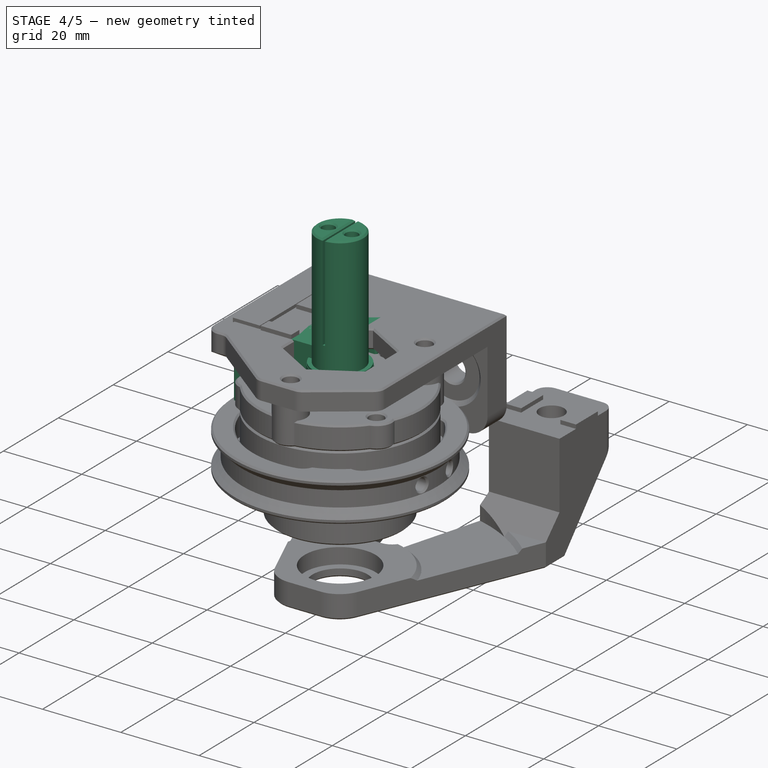
[diagram: stage 4 of 5 — iso view after this stage's code; geometry added in this stage tinted green]
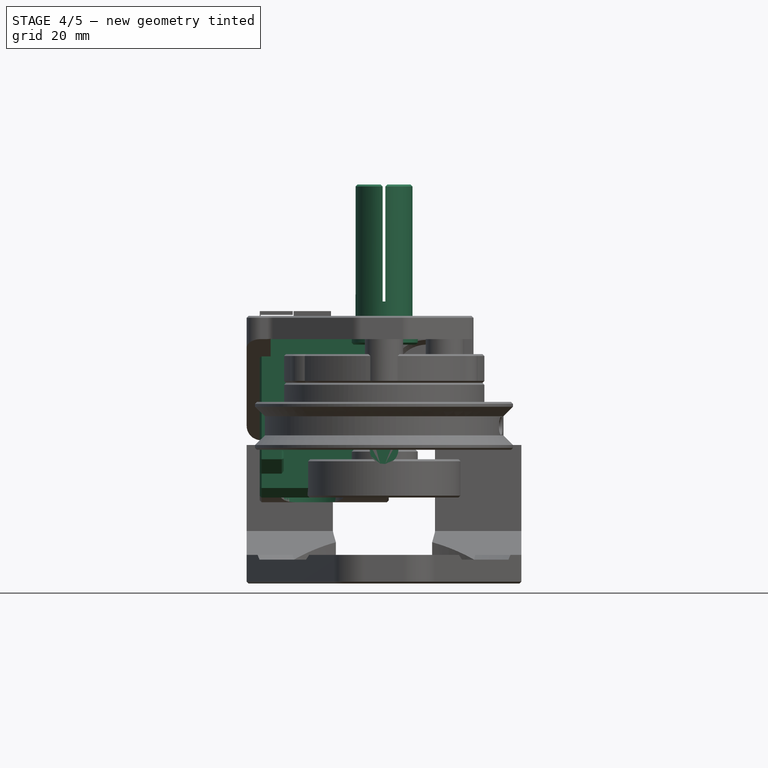
[diagram: stage 4 of 5 — front view after this stage's code; geometry added in this stage tinted green]
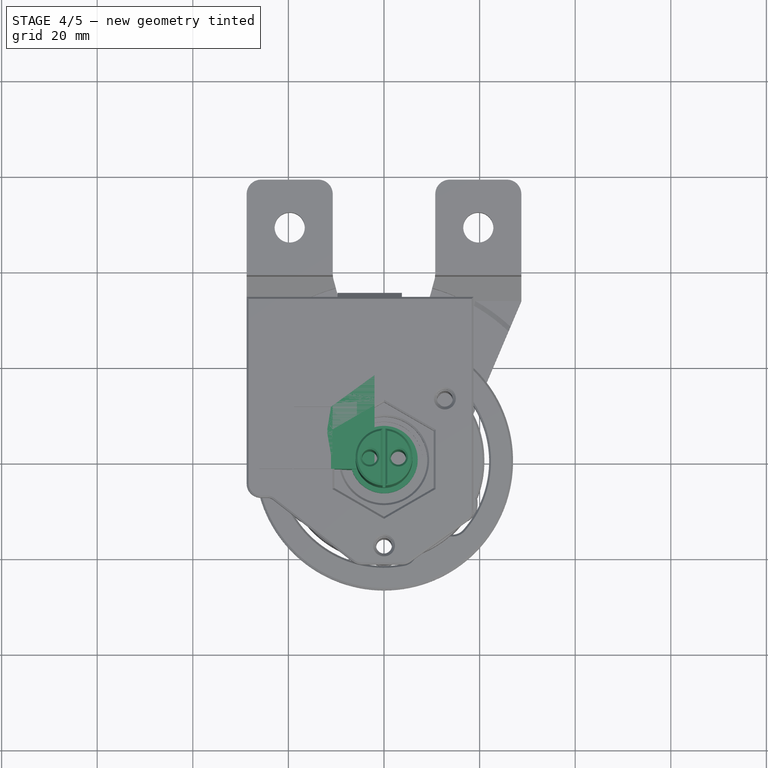
[diagram: stage 4 of 5 — top view after this stage's code; geometry added in this stage tinted green]
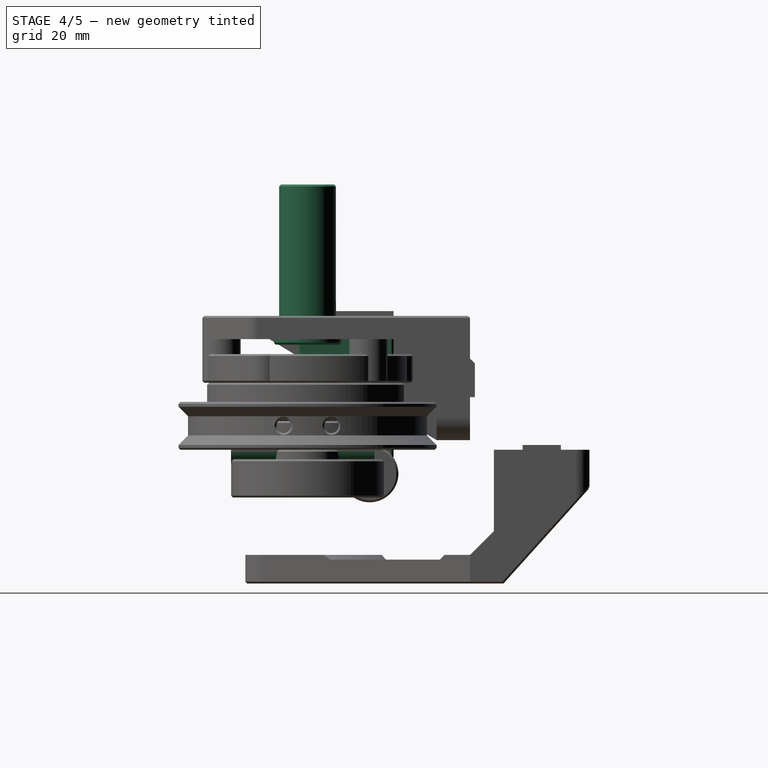
[diagram: stage 4 of 5 — right view after this stage's code; geometry added in this stage tinted green]
FEATURE [Part::Cylinder] Cylinder005
  Angle = 360
  AttacherType = Attacher::AttachEngine3D
  Height = 10
  Placement = pos=(0,-10,0) rot=(0,0,1;0rad)
  Radius = 3
FEATURE [Part::Cylinder] Cylinder006
  Angle = 360
  AttacherType = Attacher::AttachEngine3D
  Height = 30
  Placement = pos=(0,-16,0) rot=(-1,0,0;1.5708rad)
  Radius = 3
FEATURE [Part::Cylinder] Cylinder007
  Angle = 360
  AttacherType = Attacher::AttachEngine3D
  Height = 10
  Placement = pos=(0,10,0) rot=(0,0,1;0rad)
  Radius = 3
FEATURE [Part::Feature] Fusion001002012001
  Placement = pos=(-15,0,0) rot=(0,0,1;0rad)
  shape: bbox 14 x 10 x 14 mm, 7 faces (baked)
FEATURE [Part::Feature] Body003001  label="axis001"
  Placement = pos=(0,0,22) rot=(0,0,1;0rad)
  shape: bbox 14.1 x 14.1 x 43 mm, 25 faces (baked)
FEATURE [Part::Cylinder] Cylinder010
  Angle = 360
  AttacherType = Attacher::AttachEngine3D
  Height = 17
  Placement = pos=(0,0,55.5) rot=(0,0,1;0rad)
  Radius = 10
FEATURE [Part::Cut] Cut001007
  Base = -> Body003001
  Tool = -> Cylinder010
FEATURE [Part::Chamfer] Chamfer026024  label="axis-short-5p5"
  Base = -> Cut001007
  Edges = 7 edges r=0.4: [Edge21,Edge25,Edge29,Edge32,Edge33,Edge36,Edge37]
FEATURE [Part::Feature] Chamfer003068012002001  label="idler-mounter-pref"
  Placement = pos=(0,-20,0) rot=(0,0,1;0rad)
  shape: bbox 50.5 x 38.74 x 29 mm, 120 faces (baked)
FEATURE [Part::Cylinder] Cylinder011
  Angle = 360
  AttacherType = Attacher::AttachEngine3D
  Height = 39
  Placement = pos=(1,13,-5) rot=(0,-1,0;1.5708rad)
  Radius = 2
FEATURE [Part::Box] Box015  label="Cube015"
  AttacherType = Attacher::AttachEngine3D
  Height = 38
  Length = 24
  Placement = pos=(-26,-2,-10) rot=(0,0,1;0rad)
  Width = 20
FEATURE [Part::Cylinder] Cylinder012
  Angle = 360
  AttacherType = Attacher::AttachEngine3D
  Height = 43
  Placement = pos=(-15,6,-11) rot=(0,0,1;0rad)
  Radius = 3.15
FEATURE [Part::Box] Box017  label="Cube017"
  AttacherType = Attacher::AttachEngine3D
  Height = 24
  Length = 25
  Placement = pos=(-26,11,2) rot=(0,0,1;0rad)
  Width = 5
FEATURE [Part::Chamfer] Chamfer003068012002002
  Base = -> Box017
  Edges = 2 edges r=4: [Edge9,Edge10]
FEATURE [Part::Cylinder] Cylinder013
  Angle = 360
  AttacherType = Attacher::AttachEngine3D
  Height = 6
  Placement = pos=(1,13,-5) rot=(0,-1,0;1.5708rad)
  Radius = 2.55
FEATURE [Part::MultiFuse] Fusion001002012005
  Shapes = -> [Cylinder013,Cylinder011]
FEATURE [Part::Cut] Cut001008
  Base = -> Box015
  Tool = -> Chamfer003068012002002
FEATURE [Part::Chamfer] Chamfer003068012002006
  Base = -> Cut001008
  Edges = 1 edges r=2: [Edge16]
FEATURE [Part::Chamfer] Chamfer003068012002007
  Base = -> Chamfer003068012002006
  Edges = 1 edges r=2: [Edge12]
FEATURE [Part::Chamfer] Chamfer003068012002009
  Base = -> Chamfer003068012002007
  Edges = 22 edges r=0.4: [Edge1,Edge2,Edge3,Edge4,Edge5,Edge7,Edge8,Edge9,Edge10,Edge11,Edge12,Edge14,Edge16,Edge18,Edge20,Edge22,Edge26,Edge29,Edge30,Edge32,Edge34,Edge36]
FEATURE [Part::Box] Box021  label="Cube021"
  AttacherType = Attacher::AttachEngine3D
  Height = 5
  Length = 5
  Placement = pos=(-26,-5,-5) rot=(0,0,1;0rad)
  Width = 4
FEATURE [Part::Box] Box022  label="Cube022"
  AttacherType = Attacher::AttachEngine3D
  Height = 4
  Length = 1
  Placement = pos=(-2.5,0.5,16.5) rot=(0,0,1;0rad)
  Width = 7
FEATURE [Part::Box] Box023  label="Cube023"
  AttacherType = Attacher::AttachEngine3D
  Height = 4
  Length = 1
  Placement = pos=(-2.5,0.5,11) rot=(0,0,1;0rad)
  Width = 7
FEATURE [Part::MultiFuse] Fusion001002012009
  Shapes = -> [Box023,Box022]
FEATURE [Part::Chamfer] Chamfer003068012002016
  Base = -> Fusion001002012009
  Edges = 4 edges r=3: [Edge9,Edge11,Edge22,Edge24]
  Placement = pos=(0,0,1.5) rot=(0,0,1;0rad)
FEATURE [Part::Cylinder] Cylinder019
  Angle = 360
  AttacherType = Attacher::AttachEngine3D
  Height = 1
  Radius = 2.2
FEATURE [Part::Cylinder] Cylinder020
  Angle = 360
  AttacherType = Attacher::AttachEngine3D
  Height = 1
  Radius = 3.15
FEATURE [Part::Cylinder] Cylinder021
  Angle = 360
  AttacherType = Attacher::AttachEngine3D
  Height = 0.5
  Radius = 3.15
FEATURE [Part::Cylinder] Cylinder022
  Angle = 360
  AttacherType = Attacher::AttachEngine3D
  Height = 0.5
  Radius = 2.2
FEATURE [Part::Cut] Cut001020  label="1mm-spacer"
  Base = -> Cylinder020
  Tool = -> Cylinder019
FEATURE [Part::Cut] Cut001021  label="0p5-spacer"
  Base = -> Cylinder021
  Tool = -> Cylinder022
FEATURE [Part::Chamfer] Chamfer003068012002041
  Base = -> Box021
  Edges = 1 edges r=3: [Edge9]
FEATURE [Part::Chamfer] Chamfer003068012002042
  Base = -> Chamfer003068012002041
  Edges = 6 edges r=0.4: [Edge1,Edge2,Edge5,Edge6,Edge9,Edge12]
FEATURE [Part::Chamfer] Chamfer003068012002044
  Base = -> Cylinder023
  Edges = 1 edges r=0.4: [Edge1]
FEATURE [Part::MultiFuse] Fusion001002012022
  Shapes = -> [Chamfer003068012002044,Chamfer003068012002009]
FEATURE [Part::Cylinder] Cylinder024
  Angle = 360
  AttacherType = Attacher::AttachEngine3D
  Height = 2
  Placement = pos=(-15,6,-12) rot=(0,0,1;0rad)
  Radius = 7.5
FEATURE [Part::MultiFuse] Fusion001002012024
  Shapes = -> [Fusion001002012022,Fusion001002012023,Chamfer003068012002042]
FEATURE [Part::Cut] Cut001023
  Base = -> Fusion001002012024
  Tool = -> Chamfer003068012002016
FEATURE [Part::Cut] Cut001024
  Base = -> Cut001023
  Tool = -> Fusion001002012005
FEATURE [Part::Cut] Cut001025
  Base = -> Cut001024
  Tool = -> Cylinder012
FEATURE [Part::Cut] Cut001026
  Base = -> Cut001025
  Refine = true
  Tool = -> Cylinder024
FEATURE [Part::Chamfer] Chamfer003068012002045  label="universal-pulley-mount"
  Base = -> Cut001026
  Edges = 4 edges r=0.4: [Edge11,Edge43,Edge126,Edge178]
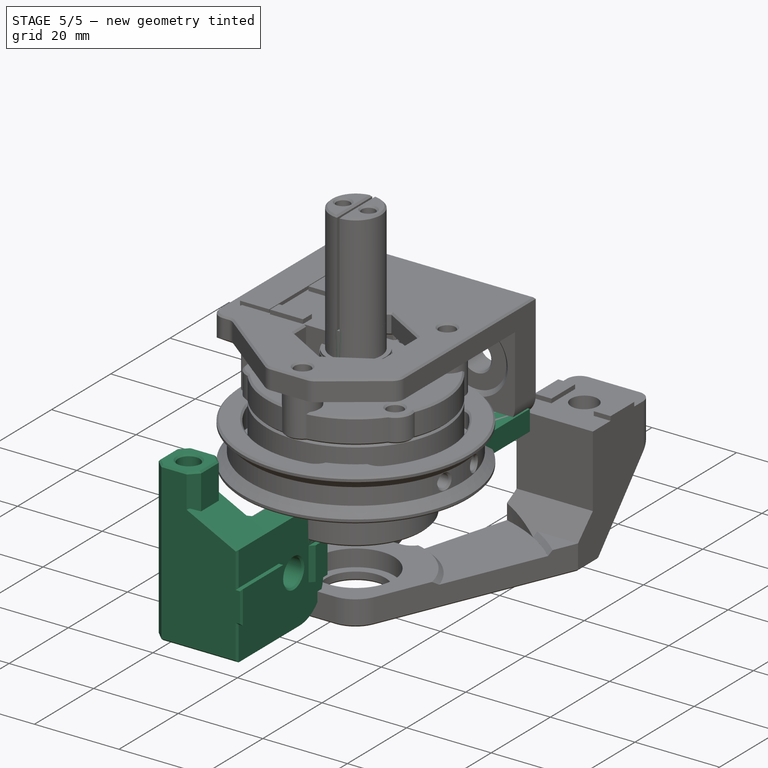
[diagram: stage 5 of 5 — iso view after this stage's code; geometry added in this stage tinted green]
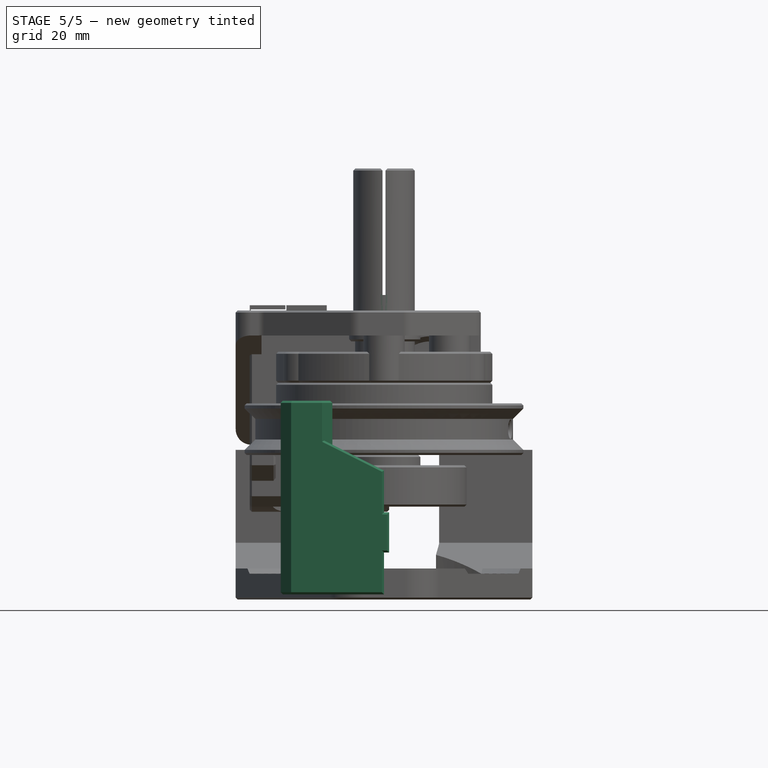
[diagram: stage 5 of 5 — front view after this stage's code; geometry added in this stage tinted green]
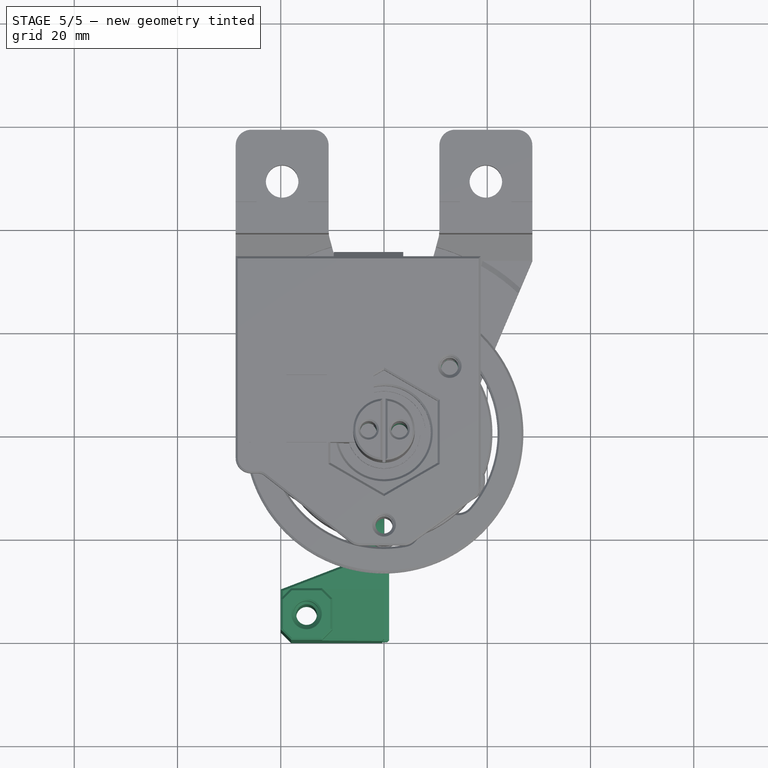
[diagram: stage 5 of 5 — top view after this stage's code; geometry added in this stage tinted green]
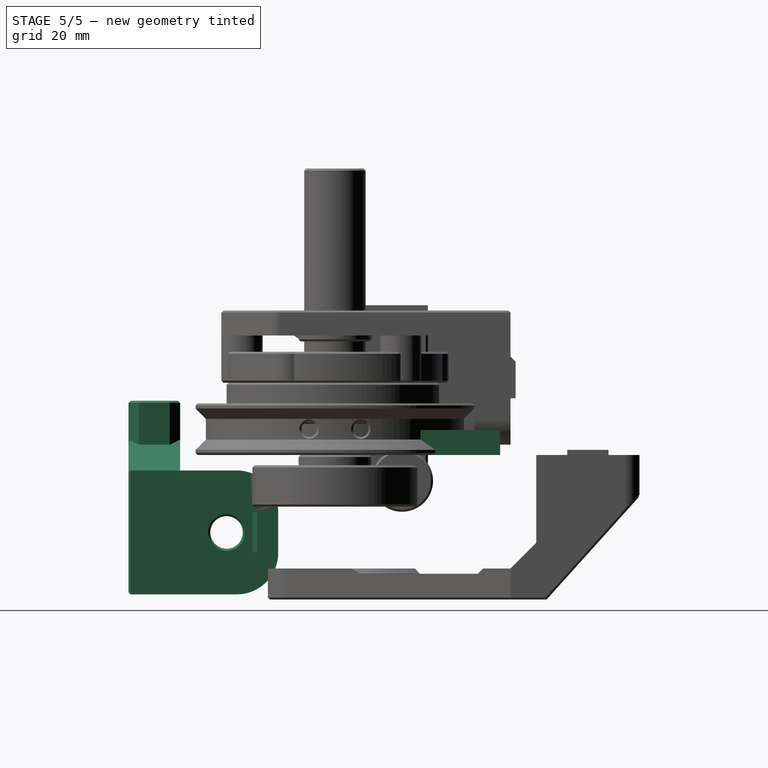
[diagram: stage 5 of 5 — right view after this stage's code; geometry added in this stage tinted green]
FEATURE [Sketcher::SketchObject] Sketch009
  FullyConstrained = true
  MapMode = 5
  Support = -> [XY_Plane001]
  expr: Constraints[1] = <<params>>.housing_outer_r
  sketch-geometry (1):
    g0: Circle CenterX=0 CenterY=0 CenterZ=0 NormalX=0 NormalY=0 NormalZ=1 AngleXU=0 Radius=21
  constraints (2):
    c: Coincident(g0,g-1)
    c: Radius(g0) = 21
FEATURE [PartDesign::Pad] Pad002
  Direction = (1,1,1)
  Length = 6
  Length2 = 100
  Profile = -> Sketch009
  Type = 0
FEATURE [PartDesign::Plane] DatumPlane004
  AttachmentOffset = pos=(0,0,6) rot=(0,0,1;0rad)
  Length = 60
  MapMode = 5
  Placement = pos=(0,0,6) rot=(0,0,1;0rad)
  ResizeMode = 0
  Support = -> [XY_Plane001]
  Width = 60
FEATURE [Sketcher::SketchObject] Sketch010
  FullyConstrained = true
  MapMode = 5
  Placement = pos=(0,0,6) rot=(0,0,1;0rad)
  Support = -> [DatumPlane004]
  sketch-geometry (13):
    g0: Circle CenterX=0 CenterY=0 CenterZ=0 NormalX=0 NormalY=0 NormalZ=1 AngleXU=0 Radius=18
    g1: LineSegment StartX=0 StartY=0 StartZ=0 EndX=-12.7279 EndY=12.7279 EndZ=0
    g2: LineSegment StartX=0 StartY=0 StartZ=0 EndX=0 EndY=18 EndZ=0
    g3: LineSegment StartX=0 StartY=0 StartZ=0 EndX=12.7279 EndY=12.7279 EndZ=0
    g4: LineSegment StartX=0 StartY=0 StartZ=0 EndX=-15.5885 EndY=-9 EndZ=0
    g5: LineSegment StartX=0 StartY=0 StartZ=0 EndX=15.5885 EndY=-9 EndZ=0
    g6: Circle CenterX=-12.7279 CenterY=12.7279 CenterZ=0 NormalX=0 NormalY=0 NormalZ=1 AngleXU=0 Radius=4
    g7: Circle CenterX=0 CenterY=18 CenterZ=0 NormalX=0 NormalY=0 NormalZ=1 AngleXU=0 Radius=4
    g8: Circle CenterX=12.7279 CenterY=12.7279 CenterZ=0 NormalX=0 NormalY=0 NormalZ=1 AngleXU=0 Radius=4
    g9: Circle CenterX=15.5885 CenterY=-9 CenterZ=0 NormalX=0 NormalY=0 NormalZ=1 AngleXU=0 Radius=4
    g10: Circle CenterX=-15.5885 CenterY=-9 CenterZ=0 NormalX=0 NormalY=0 NormalZ=1 AngleXU=0 Radius=4
    g11: Circle CenterX=0 CenterY=-18 CenterZ=0 NormalX=0 NormalY=0 NormalZ=1 AngleXU=0 Radius=4
    g12: LineSegment StartX=0 StartY=0 StartZ=0 EndX=0 EndY=-18 EndZ=0
  constraints (32):
    c: Coincident(g0,g-1)
    c: Radius(g0) = 18
    c: Coincident(g1,g-1)
    c: PointOnObject(g1,g0)
    c: Coincident(g2,g-1)
    c: PointOnObject(g2,g0)
    c: Coincident(g3,g-1)
    c: PointOnObject(g3,g0)
    c: Coincident(g4,g-1)
    c: PointOnObject(g4,g0)
    c: Coincident(g5,g-1)
    c: PointOnObject(g5,g0)
    c: Vertical(g2)
    c: Angle(g2,g1) = 0.785398
    c: Angle(g3,g2) = 0.785398
    c: Angle(g2,g4) = 2.0944
    c: Angle(g5,g2) = 2.0944
    c: Coincident(g6,g1)
    c: Coincident(g7,g2)
    c: Coincident(g8,g3)
    c: Coincident(g9,g5)
    c: Coincident(g10,g4)
    c: Radius(g6) = 4
    c: Radius(g7) = 4
    c: Radius(g8) = 4
    c: Radius(g10) = 4
    c: Radius(g9) = 4
    c: PointOnObject(g11,g0)
    c: Radius(g11) = 4
    c: Coincident(g12,g-1)
    c: Coincident(g12,g11)
    c: Vertical(g12)
FEATURE [PartDesign::Pad] Pad003
  BaseFeature = -> Pad002
  Direction = (1,1,1)
  Length = 6
  Length2 = 100
  Profile = -> Sketch010
  Reversed = true
  Type = 0
FEATURE [Sketcher::SketchObject] Sketch011
  FullyConstrained = true
  MapMode = 5
  Placement = pos=(0,0,6) rot=(0,0,1;0rad)
  Support = -> [DatumPlane004]
  sketch-geometry (13):
    g0: Circle CenterX=0 CenterY=0 CenterZ=0 NormalX=0 NormalY=0 NormalZ=1 AngleXU=0 Radius=18
    g1: LineSegment StartX=0 StartY=0 StartZ=0 EndX=-12.7279 EndY=12.7279 EndZ=0
    g2: LineSegment StartX=0 StartY=0 StartZ=0 EndX=0 EndY=18 EndZ=0
    g3: LineSegment StartX=0 StartY=0 StartZ=0 EndX=12.7279 EndY=12.7279 EndZ=0
    g4: LineSegment StartX=0 StartY=0 StartZ=0 EndX=-15.5885 EndY=-9 EndZ=0
    g5: LineSegment StartX=0 StartY=0 StartZ=0 EndX=15.5885 EndY=-9 EndZ=0
    g6: Circle CenterX=-12.7279 CenterY=12.7279 CenterZ=0 NormalX=0 NormalY=0 NormalZ=1 AngleXU=0 Radius=1.65
    g7: Circle CenterX=0 CenterY=18 CenterZ=0 NormalX=0 NormalY=0 NormalZ=1 AngleXU=0 Radius=1.65
    g8: Circle CenterX=12.7279 CenterY=12.7279 CenterZ=0 NormalX=0 NormalY=0 NormalZ=1 AngleXU=0 Radius=1.65
    g9: Circle CenterX=-15.5885 CenterY=-9 CenterZ=0 NormalX=0 NormalY=0 NormalZ=1 AngleXU=0 Radius=1.65
    g10: Circle CenterX=15.5885 CenterY=-9 CenterZ=0 NormalX=0 NormalY=0 NormalZ=1 AngleXU=0 Radius=1.65
    g11: Circle CenterX=1.21556e-11 CenterY=-18 CenterZ=0 NormalX=0 NormalY=0 NormalZ=1 AngleXU=0 Radius=1.65
    g12: LineSegment StartX=0 StartY=0 StartZ=0 EndX=1.21556e-11 EndY=-18 EndZ=0
  constraints (32):
    c: Coincident(g0,g-1)
    c: Radius(g0) = 18
    c: Coincident(g1,g-1)
    c: PointOnObject(g1,g0)
    c: Coincident(g2,g-1)
    c: PointOnObject(g2,g0)
    c: Coincident(g3,g-1)
    c: PointOnObject(g3,g0)
    c: Coincident(g4,g-1)
    c: PointOnObject(g4,g0)
    c: Coincident(g5,g-1)
    c: PointOnObject(g5,g0)
    c: Vertical(g2)
    c: Angle(g2,g1) = 0.785398
    c: Angle(g3,g2) = 0.785398
    c: Angle(g2,g4) = 2.0944
    c: Angle(g5,g2) = 2.0944
    c: Coincident(g6,g1)
    c: Coincident(g7,g2)
    c: Coincident(g8,g3)
    c: Coincident(g9,g4)
    c: Coincident(g10,g5)
    c: Radius(g6) = 1.65
    c: Radius(g9) = 1.65
    c: Radius(g10) = 1.65
    c: Radius(g8) = 1.65
    c: Radius(g7) = 1.65
    c: PointOnObject(g11,g0)
    c: Radius(g11) = 1.65
    c: Coincident(g12,g-1)
    c: Coincident(g12,g11)
    c: Angle(g-2,g12) = 3.14159
FEATURE [PartDesign::Pocket] Pocket007
  BaseFeature = -> Pad003
  Length = 5
  Length2 = 100
  Profile = -> Sketch011
  Type = 1
FEATURE [Sketcher::SketchObject] Sketch012
  FullyConstrained = true
  MapMode = 5
  Placement = pos=(0,0,6) rot=(0,0,1;0rad)
  Support = -> [DatumPlane004]
  expr: Constraints[1] = <<params>>.bearing_outer_r
  sketch-geometry (1):
    g0: Circle CenterX=0 CenterY=0 CenterZ=0 NormalX=0 NormalY=0 NormalZ=1 AngleXU=0 Radius=9.05
  constraints (2):
    c: Coincident(g0,g-1)
    c: Radius(g0) = 9.05
FEATURE [PartDesign::Pocket] Pocket008
  BaseFeature = -> Pocket007
  Length = 4
  Length2 = 100
  Profile = -> Sketch012
  Type = 0
FEATURE [Sketcher::SketchObject] Sketch013
  FullyConstrained = true
  MapMode = 5
  Placement = pos=(0,0,6) rot=(0,0,1;0rad)
  Support = -> [DatumPlane004]
  expr: Constraints[1] = <<params>>.bearing_outer_r - 1
  sketch-geometry (1):
    g0: Circle CenterX=0 CenterY=0 CenterZ=0 NormalX=0 NormalY=0 NormalZ=1 AngleXU=0 Radius=8.05
  constraints (2):
    c: Coincident(g0,g-1)
    c: Radius(g0) = 8.05
FEATURE [PartDesign::Pocket] Pocket009
  BaseFeature = -> Pocket008
  Length = 5
  Length2 = 100
  Profile = -> Sketch013
  Refine = true
  Type = 1
FEATURE [PartDesign::Body] Body001  label="cover"
  Group = -> [Sketch009,Pad002,DatumPlane004,Sketch010,Pad003,Sketch011,Pocket007,Sketch012,Pocket008,Sketch013,Pocket009]
  Origin = -> Origin001
  Placement = pos=(0,0,14) rot=(0,0,1;0rad)
  Tip = -> Pocket009
FEATURE [Sketcher::SketchObject] Sketch014
  FullyConstrained = true
  MapMode = 5
  Support = -> [XY_Plane003]
  expr: Constraints[1] = <<params>>.bearing_outer_r - 2
  sketch-geometry (1):
    g0: Circle CenterX=0 CenterY=0 CenterZ=0 NormalX=0 NormalY=0 NormalZ=1 AngleXU=0 Radius=7.05
  constraints (2):
    c: Coincident(g0,g-1)
    c: Radius(g0) = 7.05
FEATURE [PartDesign::Pad] Pad004
  Direction = (1,1,1)
  Length = 2.5
  Length2 = 100
  Profile = -> Sketch014
  Type = 0
FEATURE [PartDesign::Plane] DatumPlane005
  AttachmentOffset = pos=(0,0,2.5) rot=(0,0,1;0rad)
  Length = 60
  MapMode = 5
  Placement = pos=(0,0,2.5) rot=(0,0,1;0rad)
  ResizeMode = 0
  Support = -> [XY_Plane003]
  Width = 60
FEATURE [Sketcher::SketchObject] Sketch015
  FullyConstrained = true
  MapMode = 5
  Placement = pos=(0,0,2.5) rot=(0,0,1;0rad)
  Support = -> [DatumPlane005]
  expr: Constraints[1] = <<params>>.bearing_inner_r + 1
  sketch-geometry (1):
    g0: Circle CenterX=0 CenterY=0 CenterZ=0 NormalX=0 NormalY=0 NormalZ=1 AngleXU=0 Radius=6.95
  constraints (2):
    c: Coincident(g0,g-1)
    c: Radius(g0) = 6.95
FEATURE [PartDesign::Pad] Pad005
  BaseFeature = -> Pad004
  Direction = (1,1,1)
  Length = 0.5
  Length2 = 100
  Profile = -> Sketch015
  Type = 0
FEATURE [PartDesign::Plane] DatumPlane006
  AttachmentOffset = pos=(0,0,3) rot=(0,0,1;0rad)
  Length = 60
  MapMode = 5
  Placement = pos=(0,0,3) rot=(0,0,1;0rad)
  ResizeMode = 0
  Support = -> [XY_Plane003]
  Width = 60
FEATURE [Sketcher::SketchObject] Sketch016
  FullyConstrained = true
  MapMode = 5
  Placement = pos=(0,0,3) rot=(0,0,1;0rad)
  Support = -> [DatumPlane006]
  expr: Constraints[1] = <<params>>.bearing_inner_r
  sketch-geometry (1):
    g0: Circle CenterX=0 CenterY=0 CenterZ=0 NormalX=0 NormalY=0 NormalZ=1 AngleXU=0 Radius=5.95
  constraints (2):
    c: Coincident(g0,g-1)
    c: Radius(g0) = 5.95
FEATURE [PartDesign::Pad] Pad006
  BaseFeature = -> Pad005
  Direction = (1,1,1)
  Length = 28.5
  Length2 = 100
  Profile = -> Sketch016
  Type = 0
FEATURE [PartDesign::Plane] DatumPlane007
  AttachmentOffset = pos=(0,0,23) rot=(0,0,1;0rad)
  Length = 60
  MapMode = 5
  Placement = pos=(0,0,23) rot=(0,0,1;0rad)
  ResizeMode = 0
  Support = -> [XY_Plane003]
  Width = 60
FEATURE [PartDesign::Plane] DatumPlane008
  Length = 60
  MapMode = 5
  ResizeMode = 0
  Support = -> [XY_Plane003]
  Width = 60
FEATURE [Sketcher::SketchObject] Sketch018
  FullyConstrained = true
  MapMode = 5
  Support = -> [DatumPlane008]
  sketch-geometry (2):
    g0: Circle CenterX=-3 CenterY=0 CenterZ=0 NormalX=0 NormalY=0 NormalZ=1 AngleXU=0 Radius=1.9
    g1: Circle CenterX=3 CenterY=0 CenterZ=0 NormalX=0 NormalY=0 NormalZ=1 AngleXU=0 Radius=1.9
  constraints (6):
    c: PointOnObject(g0,g-1)
    c: PointOnObject(g1,g-1)
    c: Radius(g0) = 1.9
    c: Radius(g1) = 1.9
    c: DistanceX(g0,g-1) = 3
    c: DistanceX(g-1,g1) = 3
FEATURE [PartDesign::Pocket] Pocket010
  BaseFeature = -> Pad006
  Length = 5
  Length2 = 100
  Profile = -> Sketch018
  Reversed = true
  Type = 0
FEATURE [Sketcher::SketchObject] Sketch019
  FullyConstrained = true
  MapMode = 5
  Support = -> [DatumPlane008]
  sketch-geometry (2):
    g0: Circle CenterX=-3 CenterY=0 CenterZ=0 NormalX=0 NormalY=0 NormalZ=1 AngleXU=0 Radius=1.6
    g1: Circle CenterX=3 CenterY=0 CenterZ=0 NormalX=0 NormalY=0 NormalZ=1 AngleXU=0 Radius=1.6
  constraints (6):
    c: PointOnObject(g0,g-1)
    c: PointOnObject(g1,g-1)
    c: Radius(g0) = 1.6
    c: Radius(g1) = 1.6
    c: DistanceX(g0,g-1) = 3
    c: DistanceX(g-1,g1) = 3
FEATURE [PartDesign::Pocket] Pocket011
  BaseFeature = -> Pocket010
  Length = 5
  Length2 = 100
  Profile = -> Sketch019
  Reversed = true
  Type = 1
FEATURE [PartDesign::Plane] DatumPlane009
  AttachmentOffset = pos=(0,0,43) rot=(0,0,1;0rad)
  Length = 60
  MapMode = 5
  Placement = pos=(0,0,43) rot=(0,0,1;0rad)
  ResizeMode = 0
  Support = -> [XY_Plane003]
  Width = 60
FEATURE [Sketcher::SketchObject] Sketch020
  FullyConstrained = true
  MapMode = 5
  Placement = pos=(0,0,43) rot=(0,0,1;0rad)
  Support = -> [DatumPlane009]
  sketch-geometry (8):
    g0: LineSegment StartX=-0.3 StartY=8 StartZ=0 EndX=0.3 EndY=8 EndZ=0
    g1: LineSegment StartX=0.3 StartY=8 StartZ=0 EndX=0.3 EndY=-8 EndZ=0
    g2: LineSegment StartX=0.3 StartY=-8 StartZ=0 EndX=-0.3 EndY=-8 EndZ=0
    g3: LineSegment StartX=-0.3 StartY=-8 StartZ=0 EndX=-0.3 EndY=8 EndZ=0
    g4: LineSegment StartX=-0.3 StartY=8 StartZ=0 EndX=0.3 EndY=8 EndZ=0
    g5: LineSegment StartX=0.3 StartY=8 StartZ=0 EndX=0.3 EndY=-8 EndZ=0
    g6: LineSegment StartX=0.3 StartY=-8 StartZ=0 EndX=-0.3 EndY=-8 EndZ=0
    g7: LineSegment StartX=-0.3 StartY=-8 StartZ=0 EndX=-0.3 EndY=8 EndZ=0
  constraints (22):
    c: Coincident(g0,g1)
    c: Coincident(g1,g2)
    c: Coincident(g2,g3)
    c: Coincident(g3,g0)
    c: Horizontal(g0)
    c: Horizontal(g2)
    c: Vertical(g1)
    c: Vertical(g3)
    c: DistanceX(g0,g0) = 0.6
    c: DistanceX(g2,g-1) = 0.3
    c: DistanceY(g3,g3) = 16
    c: DistanceY(g-1,g0) = 8
    c: Coincident(g4,g5)
    c: Coincident(g5,g6)
    c: Coincident(g6,g7)
    c: Coincident(g7,g4)
    c: Horizontal(g4)
    c: Horizontal(g6)
    c: Vertical(g5)
    c: Vertical(g7)
    c: Coincident(g4,g0)
    c: Coincident(g5,g1)
FEATURE [PartDesign::Pocket] Pocket012
  BaseFeature = -> Pocket011
  Length = 34
  Length2 = 100
  Profile = -> Sketch020
  Type = 0
FEATURE [PartDesign::Chamfer] Chamfer
  Angle = 45
  Base = -> Pocket012 [Edge30,Edge25,Edge31,Edge21,Edge29]
  BaseFeature = -> Pocket012
  ChamferType = 0
  FlipDirection = false
  Size = 0.4
  Size2 = 1
  SupportTransform = false
FEATURE [PartDesign::Chamfer] Chamfer003
  Angle = 45
  Base = -> Chamfer [Face21]
  BaseFeature = -> Chamfer
  ChamferType = 0
  FlipDirection = false
  Size = 0.4
  Size2 = 1
  SupportTransform = false
FEATURE [Sketcher::SketchObject] Sketch030
  FullyConstrained = true
  MapMode = 5
  Support = -> [XY_Plane005]
  sketch-geometry (15):
    g0: Circle CenterX=0 CenterY=0 CenterZ=0 NormalX=0 NormalY=0 NormalZ=1 AngleXU=0 Radius=18
    g1: LineSegment StartX=0 StartY=0 StartZ=0 EndX=-12.7279 EndY=12.7279 EndZ=0
    g2: LineSegment StartX=0 StartY=0 StartZ=0 EndX=12.7279 EndY=12.7279 EndZ=0
    g3: Circle CenterX=-12.7279 CenterY=12.7279 CenterZ=0 NormalX=0 NormalY=0 NormalZ=1 AngleXU=0 Radius=1.6
    g4: Circle CenterX=12.7279 CenterY=12.7279 CenterZ=0 NormalX=0 NormalY=0 NormalZ=1 AngleXU=0 Radius=1.6
    g5: ArcOfCircle CenterX=-12.7279 CenterY=12.7279 CenterZ=0 NormalX=0 NormalY=0 NormalZ=1 AngleXU=0 Radius=6 StartAngle=3.14159 EndAngle=5.49778
    g6: ArcOfCircle CenterX=12.7279 CenterY=12.7279 CenterZ=0 NormalX=0 NormalY=0 NormalZ=1 AngleXU=0 Radius=6 StartAngle=3.92699 EndAngle=6.28319
    g7: ArcOfCircle CenterX=0 CenterY=0 CenterZ=0 NormalX=0 NormalY=0 NormalZ=1 AngleXU=0 Radius=12 StartAngle=0.785398 EndAngle=2.3562
    g8: LineSegment StartX=-8.4853 StartY=8.48527 StartZ=0 EndX=0 EndY=0 EndZ=0
    g9: LineSegment StartX=0 StartY=0 StartZ=0 EndX=8.48528 EndY=8.48528 EndZ=0
    g10: LineSegment StartX=-18.7279 StartY=12.7279 StartZ=0 EndX=-18.7279 EndY=32 EndZ=0
    g11: LineSegment StartX=-18.7279 StartY=32 StartZ=0 EndX=18.7279 EndY=32 EndZ=0
    g12: LineSegment StartX=18.7279 StartY=32 StartZ=0 EndX=18.7279 EndY=12.7279 EndZ=0
    g13: LineSegment StartX=-12.7279 StartY=12.7279 StartZ=0 EndX=-18.7279 EndY=12.7279 EndZ=0
    g14: LineSegment StartX=12.7279 StartY=12.7279 StartZ=0 EndX=18.7279 EndY=12.7279 EndZ=0
  constraints (38):
    c: Coincident(g0,g-1)
    c: Radius(g0) = 18
    c: Coincident(g1,g-1)
    c: PointOnObject(g1,g0)
    c: Coincident(g2,g-1)
    c: PointOnObject(g2,g0)
    c: Angle(g-2,g1) = 0.785398
    c: Angle(g2,g-2) = 0.785398
    c: Coincident(g3,g1)
    c: Coincident(g4,g2)
    c: Radius(g3) = 1.6
    c: Radius(g4) = 1.6
    c: Coincident(g5,g3)
    c: Coincident(g6,g4)
    c: Radius(g5) = 6
    c: Radius(g6) = 6
    c: Coincident(g7,g-1)
    c: Coincident(g8,g7)
    c: Coincident(g8,g7)
    c: Coincident(g9,g7)
    c: Coincident(g9,g7)
    c: Angle(g9,g-2) = 0.785398
    c: Vertical(g10)
    c: Coincident(g10,g11)
    c: Horizontal(g11)
    c: Coincident(g11,g12)
    c: Vertical(g12)
    c: DistanceY(g7,g11) = 32
    c: Coincident(g5,g10)
    c: Coincident(g5,g7)
    c: Coincident(g6,g12)
    c: Coincident(g6,g7)
    c: Coincident(g13,g3)
    c: Coincident(g13,g5)
    c: Coincident(g14,g4)
    c: Coincident(g14,g6)
    c: Horizontal(g13)
    c: Horizontal(g14)
FEATURE [PartDesign::Pad] Pad007
  Direction = (1,1,1)
  Length = 4.85
  Length2 = 100
  Profile = -> Sketch030
  Type = 0
FEATURE [PartDesign::Plane] DatumPlane013
  AttachmentOffset = pos=(0,0,10) rot=(0,0,1;0rad)
  Length = 60.6771
  MapMode = 5
  Placement = pos=(0,0,10) rot=(0,0,1;0rad)
  ResizeMode = 0
  Support = -> [XY_Plane005]
  Width = 67.6771
FEATURE [Sketcher::SketchObject] Sketch031
  FullyConstrained = true
  MapMode = 5
  Placement = pos=(0,0,10) rot=(0,0,1;0rad)
  Support = -> [DatumPlane013]
  sketch-geometry (5):
    g0: ArcOfCircle CenterX=0 CenterY=0 CenterZ=0 NormalX=0 NormalY=0 NormalZ=1 AngleXU=0 Radius=18 StartAngle=0.785398 EndAngle=2.35619
    g1: LineSegment StartX=-12.7279 StartY=12.7279 StartZ=0 EndX=0 EndY=0 EndZ=0
    g2: LineSegment StartX=0 StartY=0 StartZ=0 EndX=12.7279 EndY=12.7279 EndZ=0
    g3: Circle CenterX=-12.7279 CenterY=12.7279 CenterZ=0 NormalX=0 NormalY=0 NormalZ=1 AngleXU=0 Radius=1.95
    g4: Circle CenterX=12.7279 CenterY=12.7279 CenterZ=0 NormalX=0 NormalY=0 NormalZ=1 AngleXU=0 Radius=1.95
  constraints (12):
    c: Coincident(g0,g-1)
    c: Coincident(g1,g0)
    c: Coincident(g1,g-1)
    c: Coincident(g2,g-1)
    c: Coincident(g2,g0)
    c: Radius(g0) = 18
    c: Angle(g-2,g1) = 0.785398
    c: Angle(g2,g-2) = 0.785398
    c: Coincident(g3,g0)
    c: Coincident(g4,g0)
    c: Radius(g3) = 1.95
    c: Radius(g4) = 1.95
FEATURE [PartDesign::Body] Body001001001002003  label="mounting-arm"
  Group = -> [Sketch030,Pad007,DatumPlane013,Sketch031]
  Origin = -> Origin005
  Placement = pos=(0,0,20) rot=(0,0,1;0rad)
  Tip = -> Pad007
FEATURE [Part::Feature] Body001001001002003005  label="U624ZZ-bearing"
  Placement = pos=(-8.9e-15,-60,40) rot=(0,1,0;1.5708rad)
  shape: bbox 15 x 15 x 7 mm, 6 faces (baked)
FEATURE [Sketcher::SketchObject] Sketch032
  FullyConstrained = true
  MapMode = 5
  Placement = pos=(0,0,0) rot=(1,0,0;1.5708rad)
  Support = -> [XZ_Plane006]
  sketch-geometry (10):
    g0: LineSegment StartX=-20 StartY=10.5 StartZ=0 EndX=-10 EndY=10.5 EndZ=0
    g1: LineSegment StartX=-10 StartY=10.5 StartZ=0 EndX=-10 EndY=2 EndZ=0
    g2: LineSegment StartX=-10 StartY=2 StartZ=0 EndX=0 EndY=-3 EndZ=0
    g3: LineSegment StartX=0 StartY=-3 StartZ=0 EndX=0 EndY=-11.1 EndZ=0
    g4: LineSegment StartX=0 StartY=-11.1 StartZ=0 EndX=1 EndY=-11.1 EndZ=0
    g5: LineSegment StartX=1 StartY=-11.1 StartZ=0 EndX=1 EndY=-18.9 EndZ=0
    g6: LineSegment StartX=1 StartY=-18.9 StartZ=0 EndX=1e-16 EndY=-18.9 EndZ=0
    g7: LineSegment StartX=1e-16 StartY=-18.9 StartZ=0 EndX=1e-16 EndY=-27 EndZ=0
    g8: LineSegment StartX=1e-16 StartY=-27 StartZ=0 EndX=-20 EndY=-27 EndZ=0
    g9: LineSegment StartX=-20 StartY=-27 StartZ=0 EndX=-20 EndY=10.5 EndZ=0
  constraints (30):
    c: Horizontal(g0)
    c: Coincident(g0,g1)
    c: Vertical(g1)
    c: Coincident(g1,g2)
    c: Coincident(g2,g3)
    c: Vertical(g3)
    c: Coincident(g3,g4)
    c: Horizontal(g4)
    c: Coincident(g4,g5)
    c: Vertical(g5)
    c: Coincident(g5,g6)
    c: Horizontal(g6)
    c: Coincident(g6,g7)
    c: Vertical(g7)
    c: Coincident(g7,g8)
    c: Horizontal(g8)
    c: Coincident(g8,g9)
    c: Coincident(g9,g0)
    c: Vertical(g9)
    c: DistanceY(g5,g5) = 7.8
    c: DistanceY(g4,g-1) = 11.1
    c: DistanceY(g2,g-1) = 3
    c: DistanceX(g1,g2) = 10
    c: DistanceX(g4,g4) = 1
    c: DistanceX(g6,g6) = 1
    c: DistanceY(g7,g-1) = 27
    c: DistanceX(g2,g-1) = 0
    c: DistanceY(g2,g1) = 5
    c: DistanceX(g0,g0) = 10
    c: DistanceY(g-1,g0) = 10.5
FEATURE [PartDesign::Pad] Pad008
  Direction = (1,1,1)
  Length = 40
  Length2 = 100
  Placement = pos=(0,0,0) rot=(1,0,0;1.5708rad)
  Profile = -> Sketch032
  Type = 0
FEATURE [PartDesign::Plane] DatumPlane014
  AttachmentOffset = pos=(0,0,-20) rot=(0,0,1;0rad)
  Length = 76.6276
  MapMode = 5
  Placement = pos=(-20,4.4e-15,-4.4e-15) rot=(0.57735,0.57735,0.57735;2.0944rad)
  ResizeMode = 0
  Support = -> [YZ_Plane006]
  Width = 63.6276
FEATURE [Sketcher::SketchObject] Sketch033
  FullyConstrained = true
  MapMode = 5
  Placement = pos=(-20,4.4e-15,-4.4e-15) rot=(0.57735,0.57735,0.57735;2.0944rad)
  Support = -> [DatumPlane014]
  sketch-geometry (4):
    g0: LineSegment StartX=-30 StartY=10.5 StartZ=0 EndX=0 EndY=10.5 EndZ=0
    g1: LineSegment StartX=-30 StartY=-3 StartZ=0 EndX=-30 EndY=10.5 EndZ=0
    g2: LineSegment StartX=0 StartY=10.5 StartZ=0 EndX=0 EndY=-3 EndZ=0
    g3: LineSegment StartX=0 StartY=-3 StartZ=0 EndX=-30 EndY=-3 EndZ=0
  constraints (12):
    c: Horizontal(g0)
    c: Coincident(g1,g0)
    c: Vertical(g1)
    c: DistanceX(g0,g0) = 30
    c: Coincident(g0,g2)
    c: Vertical(g2)
    c: DistanceX(g0,g-1) = 0
    c: DistanceY(g-1,g0) = 10.5
    c: Coincident(g3,g2)
    c: Coincident(g1,g3)
    c: DistanceY(g1,g-1) = 3
    c: Horizontal(g3)
FEATURE [PartDesign::Pocket] Pocket020
  BaseFeature = -> Pad008
  Length = 5
  Length2 = 100
  Placement = pos=(0,0,0) rot=(1,0,0;1.5708rad)
  Profile = -> Sketch033
  Reversed = true
  Type = 1
FEATURE [PartDesign::Plane] DatumPlane015
  AttachmentOffset = pos=(0,0,-27) rot=(0,0,1;0rad)
  Length = 61.4018
  MapMode = 5
  Placement = pos=(0,0,-27) rot=(0,0,1;0rad)
  ResizeMode = 0
  Support = -> [XY_Plane006]
  Width = 76.4018
FEATURE [Sketcher::SketchObject] Sketch034
  FullyConstrained = true
  MapMode = 5
  Placement = pos=(0,0,-27) rot=(0,0,1;0rad)
  Support = -> [DatumPlane015]
  sketch-geometry (4):
    g0: LineSegment StartX=-20 StartY=-30 StartZ=0 EndX=-7 EndY=-25 EndZ=0
    g1: LineSegment StartX=-7 StartY=-25 StartZ=0 EndX=-7 EndY=0 EndZ=0
    g2: LineSegment StartX=-7 StartY=0 StartZ=0 EndX=-20 EndY=0 EndZ=0
    g3: LineSegment StartX=-20 StartY=0 StartZ=0 EndX=-20 EndY=-30 EndZ=0
  constraints (12):
    c: Coincident(g0,g1)
    c: Vertical(g1)
    c: Coincident(g1,g2)
    c: Horizontal(g2)
    c: Coincident(g2,g3)
    c: Coincident(g3,g0)
    c: Vertical(g3)
    c: DistanceX(g1,g-1) = 7
    c: DistanceX(g2,g1) = 13
    c: DistanceY(g0,g0) = 5
    c: DistanceY(g0,g-1) = 30
    c: DistanceY(g-1,g2) = 0
FEATURE [PartDesign::Pocket] Pocket021
  BaseFeature = -> Pocket020
  Length = 5
  Length2 = 100
  Placement = pos=(0,0,0) rot=(1,0,0;1.5708rad)
  Profile = -> Sketch034
  Reversed = true
  Type = 1
FEATURE [PartDesign::Plane] DatumPlane016
  AttachmentOffset = pos=(0,0,-7) rot=(0,0,1;0rad)
  Length = 76.6276
  MapMode = 5
  Placement = pos=(-7,1.6e-15,-1.6e-15) rot=(0.57735,0.57735,0.57735;2.0944rad)
  ResizeMode = 0
  Support = -> [YZ_Plane006]
  Width = 63.6276
FEATURE [Sketcher::SketchObject] Sketch035
  FullyConstrained = true
  MapMode = 5
  Placement = pos=(-7,1.6e-15,-1.6e-15) rot=(0.57735,0.57735,0.57735;2.0944rad)
  Support = -> [DatumPlane016]
  sketch-geometry (1):
    g0: Circle CenterX=-21 CenterY=-15 CenterZ=0 NormalX=0 NormalY=0 NormalZ=1 AngleXU=0 Radius=8
  constraints (3):
    c: Radius(g0) = 8
    c: DistanceY(g0,g-1) = 15
    c: DistanceX(g0,g-1) = 21
FEATURE [PartDesign::Pocket] Pocket022
  BaseFeature = -> Pocket021
  Length = 8
  Length2 = 100
  Placement = pos=(0,0,0) rot=(1,0,0;1.5708rad)
  Profile = -> Sketch035
  Type = 1
FEATURE [Sketcher::SketchObject] Sketch036
  FullyConstrained = true
  MapMode = 5
  Placement = pos=(-7,1.6e-15,-1.6e-15) rot=(0.57735,0.57735,0.57735;2.0944rad)
  Support = -> [DatumPlane016]
  sketch-geometry (1):
    g0: Circle CenterX=-21 CenterY=-15 CenterZ=0 NormalX=0 NormalY=0 NormalZ=1 AngleXU=0 Radius=3.15
  constraints (3):
    c: Radius(g0) = 3.15
    c: DistanceX(g0,g-1) = 21
    c: DistanceY(g0,g-1) = 15
FEATURE [Sketcher::SketchObject] Sketch037
  FullyConstrained = true
  MapMode = 5
  Placement = pos=(-7,1.6e-15,-1.6e-15) rot=(0.57735,0.57735,0.57735;2.0944rad)
  Support = -> [DatumPlane016]
  sketch-geometry (4):
    g0: LineSegment StartX=-11 StartY=-3 StartZ=0 EndX=0 EndY=-3 EndZ=0
    g1: LineSegment StartX=0 StartY=-3 StartZ=0 EndX=0 EndY=-27 EndZ=0
    g2: LineSegment StartX=0 StartY=-27 StartZ=0 EndX=-11 EndY=-27 EndZ=0
    g3: LineSegment StartX=-11 StartY=-27 StartZ=0 EndX=-11 EndY=-3 EndZ=0
  constraints (12):
    c: Coincident(g0,g1)
    c: Coincident(g1,g2)
    c: Coincident(g2,g3)
    c: Coincident(g3,g0)
    c: Horizontal(g0)
    c: Horizontal(g2)
    c: Vertical(g1)
    c: Vertical(g3)
    c: DistanceX(g2,g2) = 11
    c: DistanceY(g3,g3) = 24
    c: DistanceY(g0,g-1) = 3
    c: DistanceX(g0,g-1) = 0
FEATURE [PartDesign::Pocket] Pocket023
  BaseFeature = -> Pocket022
  Length = 5
  Length2 = 100
  Placement = pos=(0,0,0) rot=(1,0,0;1.5708rad)
  Profile = -> Sketch036
  Reversed = true
  Type = 1
FEATURE [PartDesign::Pocket] Pocket024
  BaseFeature = -> Pocket023
  Length = 5
  Length2 = 100
  Placement = pos=(0,0,0) rot=(1,0,0;1.5708rad)
  Profile = -> Sketch037
  Reversed = true
  Type = 1
FEATURE [PartDesign::Fillet] Fillet003002004
  Base = -> Pocket024 [Edge37,Edge23]
  BaseFeature = -> Pocket024
  Placement = pos=(0,0,0) rot=(1,0,0;1.5708rad)
  Radius = 8
  SupportTransform = false
FEATURE [PartDesign::Plane] DatumPlane017
  AttachmentOffset = pos=(0,0,10.5) rot=(0,0,1;0rad)
  Length = 61.4018
  MapMode = 5
  Placement = pos=(0,0,10.5) rot=(0,0,1;0rad)
  ResizeMode = 0
  Support = -> [XY_Plane006]
  Width = 76.4018
FEATURE [Sketcher::SketchObject] Sketch038
  FullyConstrained = true
  MapMode = 5
  Placement = pos=(0,0,10.5) rot=(0,0,1;0rad)
  Support = -> [DatumPlane017]
  sketch-geometry (1):
    g0: Circle CenterX=-15 CenterY=-35 CenterZ=0 NormalX=0 NormalY=0 NormalZ=1 AngleXU=0 Radius=2
  constraints (3):
    c: DistanceX(g0,g-1) = 15
    c: DistanceY(g0,g-1) = 35
    c: Radius(g0) = 2
FEATURE [PartDesign::Pocket] Pocket025
  BaseFeature = -> Fillet003002004
  Length = 5
  Length2 = 100
  Placement = pos=(0,0,0) rot=(1,0,0;1.5708rad)
  Profile = -> Sketch038
  Type = 1
FEATURE [Sketcher::SketchObject] Sketch039
  FullyConstrained = true
  MapMode = 5
  Placement = pos=(0,0,10.5) rot=(0,0,1;0rad)
  Support = -> [DatumPlane017]
  sketch-geometry (1):
    g0: Circle CenterX=-15 CenterY=-35 CenterZ=0 NormalX=0 NormalY=0 NormalZ=1 AngleXU=0 Radius=2.55
  constraints (3):
    c: DistanceX(g0,g-1) = 15
    c: DistanceY(g0,g-1) = 35
    c: Radius(g0) = 2.55
FEATURE [PartDesign::Pocket] Pocket026
  BaseFeature = -> Pocket025
  Length = 6
  Length2 = 100
  Placement = pos=(0,0,0) rot=(1,0,0;1.5708rad)
  Profile = -> Sketch039
  Type = 0
FEATURE [PartDesign::Plane] DatumPlane018
  AttachmentOffset = pos=(0,0,1) rot=(0,0,1;0rad)
  Length = 76.6276
  MapMode = 5
  Placement = pos=(1,-2e-16,2e-16) rot=(0.57735,0.57735,0.57735;2.0944rad)
  ResizeMode = 0
  Support = -> [YZ_Plane006]
  Width = 63.6276
FEATURE [Sketcher::SketchObject] Sketch040
  FullyConstrained = true
  MapMode = 5
  Placement = pos=(1,-2e-16,2e-16) rot=(0.57735,0.57735,0.57735;2.0944rad)
  Support = -> [DatumPlane018]
  sketch-geometry (4):
    g0: LineSegment StartX=-26 StartY=-11 StartZ=0 EndX=-16 EndY=-11 EndZ=0
    g1: LineSegment StartX=-16 StartY=-11 StartZ=0 EndX=-16 EndY=-19 EndZ=0
    g2: LineSegment StartX=-16 StartY=-19 StartZ=0 EndX=-26 EndY=-19 EndZ=0
    g3: LineSegment StartX=-26 StartY=-19 StartZ=0 EndX=-26 EndY=-11 EndZ=0
  constraints (12):
    c: Coincident(g0,g1)
    c: Coincident(g1,g2)
    c: Coincident(g2,g3)
    c: Coincident(g3,g0)
    c: Horizontal(g0)
    c: Horizontal(g2)
    c: Vertical(g1)
    c: Vertical(g3)
    c: DistanceX(g0,g0) = 10
    c: DistanceY(g1,g1) = 8
    c: DistanceY(g0,g-1) = 11
    c: DistanceX(g0,g-1) = 16
FEATURE [PartDesign::Pocket] Pocket027
  BaseFeature = -> Pocket026
  Length = 1
  Length2 = 100
  Placement = pos=(0,0,0) rot=(1,0,0;1.5708rad)
  Profile = -> Sketch040
  Type = 0
FEATURE [PartDesign::Chamfer] Chamfer026013
  Angle = 45
  Base = -> Pocket027 [Edge43,Edge49,Edge19,Edge17]
  BaseFeature = -> Pocket027
  ChamferType = 0
  FlipDirection = false
  Placement = pos=(0,0,0) rot=(1,0,0;1.5708rad)
  Size = 2
  Size2 = 1
  SupportTransform = false
FEATURE [PartDesign::Chamfer] Chamfer026014
  Angle = 45
  Base = -> Chamfer026013 [Edge64,Edge65,Edge66,Edge67,Edge61,Edge21,Edge68,Edge26,Edge30,Edge34,Edge35,Edge36,Edge28,Edge7,Edge6,Edge4,Edge75,Edge90,Edge71,Edge43,Edge41,Edge24,Edge14,Edge8,Edge39,Edge40,Edge42,Edge44,Edge50,Edge49]
  BaseFeature = -> Chamfer026013
  ChamferType = 0
  FlipDirection = false
  Placement = pos=(0,0,0) rot=(1,0,0;1.5708rad)
  Size = 0.4
  Size2 = 1
  SupportTransform = false
FEATURE [PartDesign::Chamfer] Chamfer026015
  Angle = 45
  Base = -> Chamfer026014 [Edge119]
  BaseFeature = -> Chamfer026014
  ChamferType = 0
  FlipDirection = false
  Placement = pos=(0,0,0) rot=(1,0,0;1.5708rad)
  Size = 0.99
  Size2 = 1
  SupportTransform = false
FEATURE [PartDesign::Chamfer] Chamfer026016
  Angle = 45
  Base = -> Chamfer026015 [Edge152]
  BaseFeature = -> Chamfer026015
  ChamferType = 0
  FlipDirection = false
  Placement = pos=(0,0,0) rot=(1,0,0;1.5708rad)
  Size = 0.5
  Size2 = 1
  SupportTransform = false
FEATURE [PartDesign::Body] Body001001001002003006  label="top-pulley-arm"
  Group = -> [Sketch032,Pad008,DatumPlane014,Sketch033,Pocket020,DatumPlane015,Sketch034,Pocket021,DatumPlane016,Sketch035,Pocket022,Sketch036,Pocket023,Sketch037,Pocket024,Fillet003002004,DatumPlane017,Sketch038,Pocket025,Sketch039,Pocket026,DatumPlane018,Sketch040,Pocket027,Chamfer026013,Chamfer026014,Chamfer026015,Chamfer026016]
  Origin = -> Origin006
  Placement = pos=(10,-25,0) rot=(0,0,1;0rad)
  Tip = -> Chamfer026016
FEATURE [Sketcher::SketchObject] Sketch041
  FullyConstrained = true
  MapMode = 5
  Support = -> [XY_Plane007]
  sketch-geometry (2):
    g0: Circle CenterX=0 CenterY=0 CenterZ=0 NormalX=0 NormalY=0 NormalZ=1 AngleXU=0 Radius=2.2
    g1: Circle CenterX=0 CenterY=0 CenterZ=0 NormalX=0 NormalY=0 NormalZ=1 AngleXU=0 Radius=3.5
  constraints (4):
    c: Coincident(g0,g-1)
    c: Coincident(g1,g0)
    c: Radius(g0) = 2.2
    c: Radius(g1) = 3.5
FEATURE [PartDesign::Pad] Pad009
  Direction = (1,1,1)
  Length = 1
  Length2 = 100
  Profile = -> Sketch041
  Type = 0
FEATURE [PartDesign::Body] Body001001001002003007  label="spacer"
  Group = -> [Sketch041,Pad009]
  Origin = -> Origin007
  Tip = -> Pad009
FEATURE [Part::Feature] Chamfer004013007011015006002001_cs
  shape: bbox 28 x 20 x 3e-07 mm, 0 faces, 0 solids (baked)
FEATURE [Part::Extrusion] Extrude
  Base = -> Chamfer004013007011015006002001_cs
  Dir = (0,0,1)
  DirMode = 2
  FaceMakerClass = Part::FaceMakerBullseye
  LengthFwd = 9
  LengthRev = 0
  Solid = true
  Symmetric = false
FEATURE [Part::Cylinder] Cylinder003
  Angle = 360
  AttacherType = Attacher::AttachEngine3D
  Height = 9
  Radius = 5
FEATURE [Part::MultiFuse] Fusion001002010
  Shapes = -> [Cylinder003,Extrude]
FEATURE [Part::Cylinder] Cylinder004
  Angle = 360
  AttacherType = Attacher::AttachEngine3D
  Height = 10
  Placement = pos=(0,0,4) rot=(0,0,1;0rad)
  Radius = 1.9
FEATURE [Part::Cut] Cut001004
  Base = -> Fusion001002010
  Tool = -> Cylinder004
FEATURE [Part::MultiFuse] Fusion001002011
  Shapes = -> [Cylinder005,Cylinder006,Cylinder007]
FEATURE [Part::Cut] Cut001005
  Base = -> Cut001004
  Tool = -> Fusion001002011
FEATURE [Part::Fillet] Fillet003002005
  Base = -> Cut001005
  Edges = 3 edges r=3: [Edge38,Edge39,Edge66]
FEATURE [Part::Chamfer] Chamfer026017
  Base = -> Fillet003002005
  Edges = 2 edges r=1: [Edge3,Edge26]
FEATURE [Part::Chamfer] Chamfer026018  label="wire-mounter"
  Base = -> Chamfer026017
  Edges = 1 edges r=0.4: [Edge121]
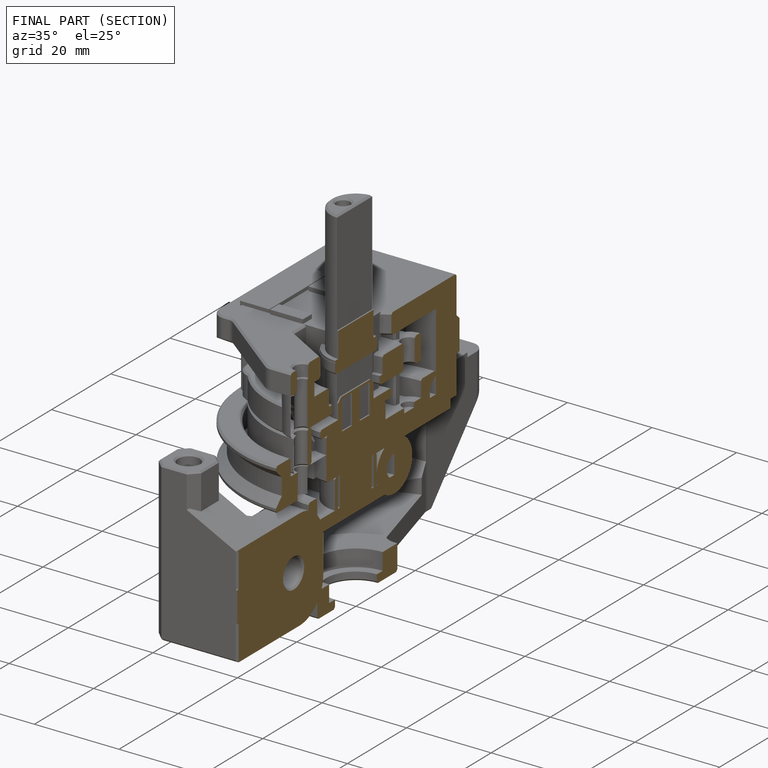
[diagram: finished part — half-section view (interior)]
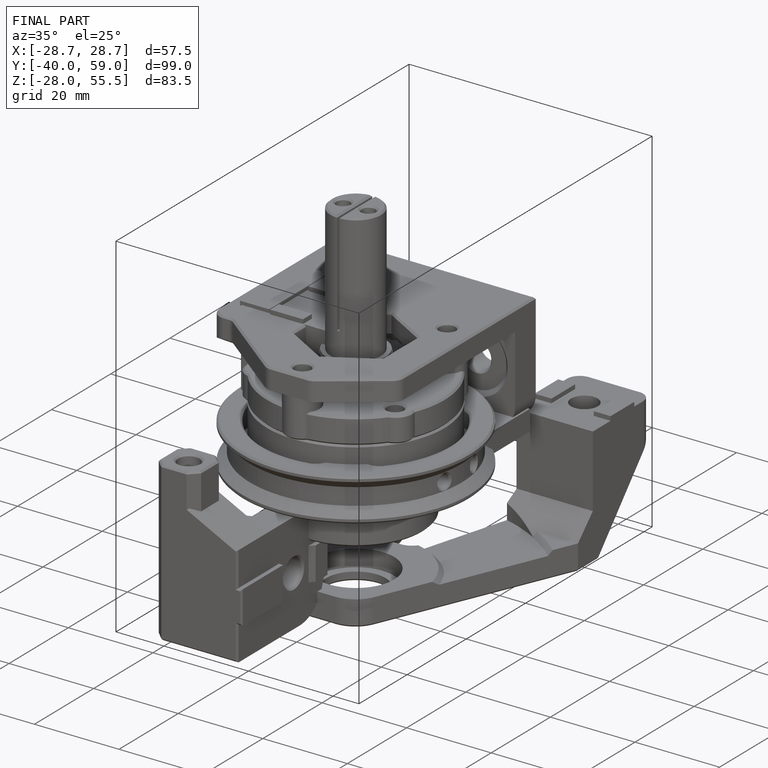
[diagram: finished part — iso view with bounding-box wireframe]
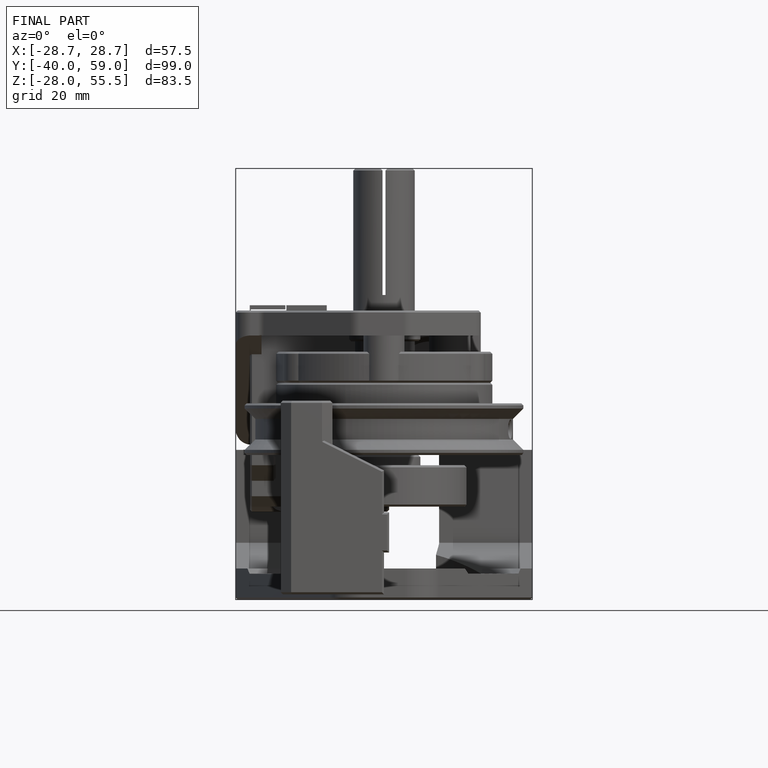
[diagram: finished part — front view with bounding-box wireframe]
